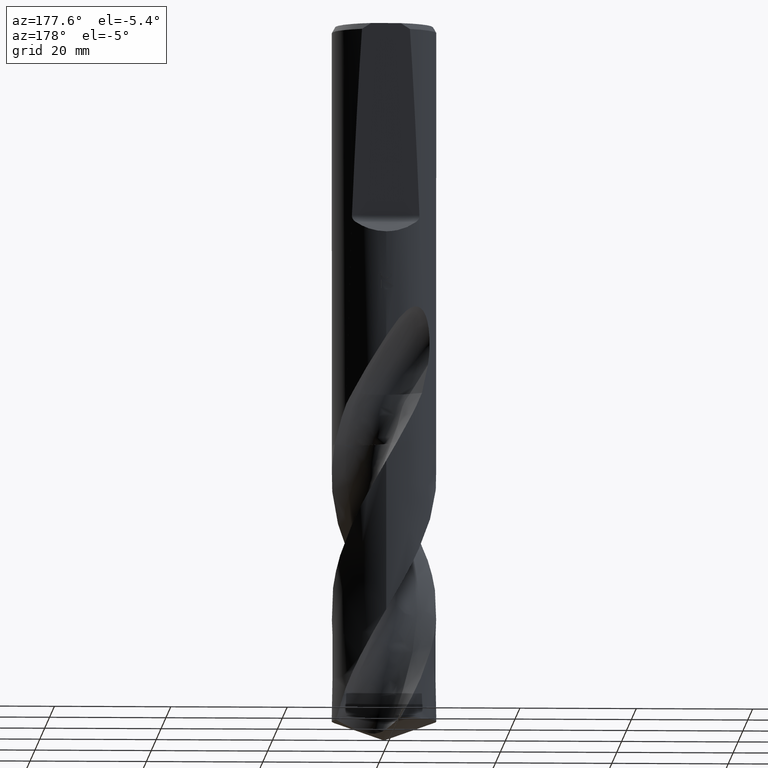
[diagram: clean part render]
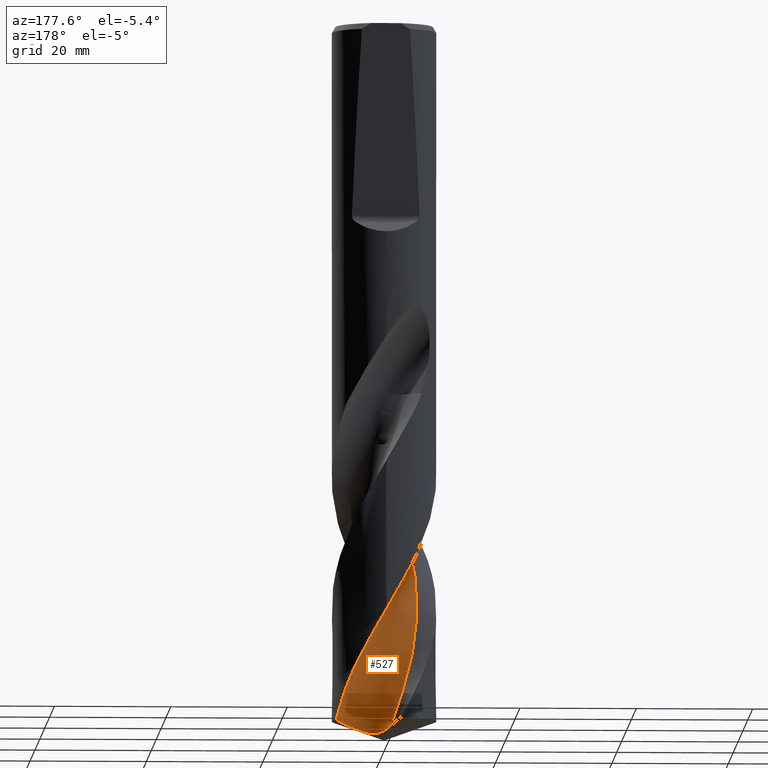
[diagram: same view with one face highlighted and labeled with its STEP entity id]
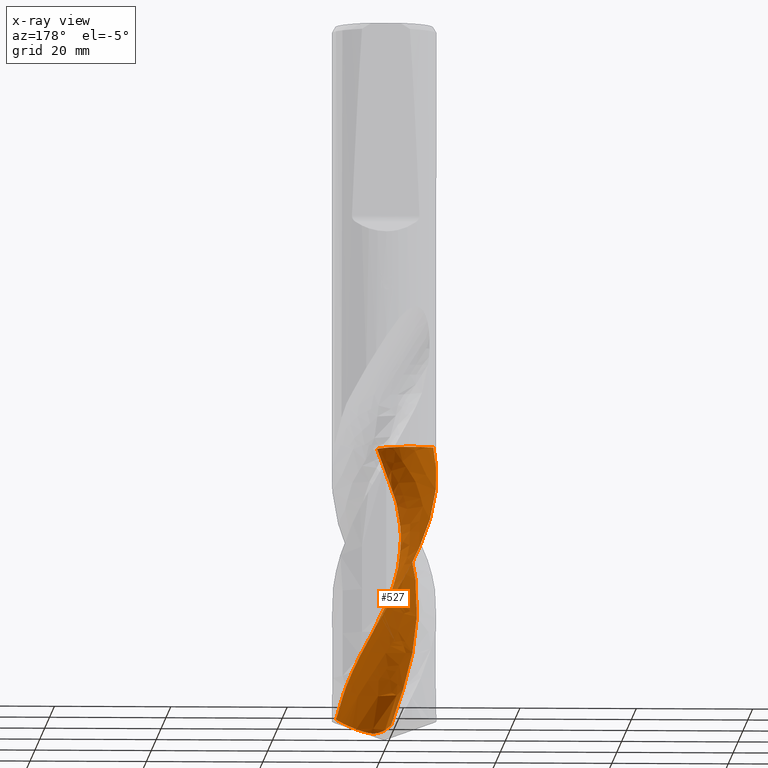
[diagram: x-ray of the same camera — body ghosted, the highlighted face saturated]
A machine part, auxiliary view. The second image highlights one B-rep face of the part: STEP entity #527.
The next image is the same camera in x-ray: the body ghosted, the highlighted face saturated — about 0% of this face is hidden behind the body in this view.
In plain terms, the highlighted face is a freeform B-spline surface patch.
Its self-contained STEP definition (entity closure, byte-faithful):
#287=EDGE_CURVE('',#497,#599,#803,.T.);
#367=VERTEX_POINT('',#889);
#415=EDGE_CURVE('',#699,#497,#941,.T.);
#497=VERTEX_POINT('',#1032);
#525=EDGE_CURVE('',#599,#563,#1061,.T.);
#527=ADVANCED_FACE('',(#1063),#1064,.F.);
#537=EDGE_CURVE('',#761,#367,#1075,.T.);
#559=EDGE_CURVE('',#563,#761,#1101,.T.);
#563=VERTEX_POINT('',#1105);
#599=VERTEX_POINT('',#1145);
#699=VERTEX_POINT('',#1252);
#761=VERTEX_POINT('',#1320);
#765=EDGE_CURVE('',#367,#699,#1324,.T.);
#803=B_SPLINE_CURVE_WITH_KNOTS('',3,(#1957,#1958,#1959,#1960,#1961,#1962,#1963,#1964,#1965,#1966,#1967,#1968,#1969,#1970,#1971,#1972,#1973,#1974,#1975,#1976,#1977,#1978,#1979,#1980,#1981,#1982,#1983,#1984,#1985,#1986,#1987,#1988,#1989,#1990,#1991,#1992,#1993,#1994,#1995,#1996,#1997,#1998,#1999,#2000,#2001,#2002,#2003,#2004,#2005,#2006,#2007,#2008,#2009,#2010,#2011,#2012,#2013,#2014,#2015,#2016),.UNSPECIFIED.,.F.,.F.,(4,2,2,2,2,2,2,2,2,2,2,2,2,2,2,2,2,2,2,2,2,2,2,2,2,2,2,2,2,4),(0.0,2.46118076697465,3.75325145083488,5.70762740824844,8.41329831260749,9.71021391226988,11.8437018549063,12.834451017425,14.0167842203854,15.9593827810047,16.9862517761427,18.5812952919834,21.7512172465028,22.4530451376157,24.3716531520967,25.3626805579739,27.1428678515946,29.9215717103951,31.2001345101285,33.2308335439265,34.196366534837,35.4946594949775,39.0064105842713,39.5056344630486,43.3844075552442,43.5526599539764,45.8807975166537,50.4473462912388,52.7313687469229,55.0114003033254),.UNSPECIFIED.);
#889=CARTESIAN_POINT('',(-0.946776497834975,5.59300826190558,-120.935350905957));
#941=B_SPLINE_CURVE_WITH_KNOTS('',3,(#3430,#3431,#3432,#3433,#3434,#3435,#3436,#3437,#3438,#3439,#3440,#3441,#3442,#3443,#3444,#3445,#3446,#3447,#3448,#3449),.UNSPECIFIED.,.F.,.F.,(4,2,2,2,2,2,2,2,2,4),(0.0,3.45010421380849,5.01221558893851,6.2986139727827,8.2621804399567,10.6288702906526,13.3342852086293,16.3805995540895,19.7744437824298,23.4809774821752),.UNSPECIFIED.);
#1032=CARTESIAN_POINT('',(8.38343318224914,3.27384301376289,-119.724267891604));
#1061=B_SPLINE_CURVE_WITH_KNOTS('',3,(#4143,#4144,#4145,#4146,#4147,#4148,#4149,#4150,#4151,#4152,#4153,#4154,#4155,#4156,#4157,#4158,#4159,#4160,#4161,#4162,#4163,#4164,#4165,#4166,#4167,#4168,#4169,#4170,#4171,#4172,#4173,#4174,#4175,#4176,#4177,#4178,#4179,#4180,#4181,#4182,#4183,#4184,#4185,#4186,#4187,#4188,#4189,#4190,#4191,#4192,#4193,#4194,#4195,#4196,#4197,#4198,#4199,#4200,#4201,#4202),.UNSPECIFIED.,.F.,.F.,(4,2,2,2,2,2,2,2,2,2,2,2,2,2,2,2,2,2,2,2,2,2,2,2,2,2,2,2,2,4),(0.0,2.46118076697465,3.75325145083488,5.70762740824844,8.41329831260749,9.71021391226988,11.8437018549063,12.834451017425,14.0167842203854,15.9593827810047,16.9862517761427,18.5812952919834,21.7512172465028,22.4530451376157,24.3716531520967,25.3626805579739,27.1428678515946,29.9215717103951,31.2001345101285,33.2308335439265,34.196366534837,35.4946594949775,39.0064105842713,39.5056344630486,43.3844075552442,43.5526599539764,45.8807975166537,50.4473462912388,52.7313687469229,55.0114003033254),.UNSPECIFIED.);
#1063=FACE_OUTER_BOUND('',#4204,.T.);
#1064=B_SPLINE_SURFACE_WITH_KNOTS('',3,3,((#4205,#4206,#4207,#4208,#4209,#4210,#4211,#4212,#4213,#4214,#4215,#4216,#4217,#4218,#4219,#4220,#4221,#4222,#4223,#4224,#4225,#4226,#4227,#4228,#4229,#4230,#4231,#4232,#4233,#4234,#4235,#4236,#4237,#4238,#4239,#4240,#4241,#4242,#4243,#4244,#4245,#4246,#4247),(#4248,#4249,#4250,#4251,#4252,#4253,#4254,#4255,#4256,#4257,#4258,#4259,#4260,#4261,#4262,#4263,#4264,#4265,#4266,#4267,#4268,#4269,#4270,#4271,#4272,#4273,#4274,#4275,#4276,#4277,#4278,#4279,#4280,#4281,#4282,#4283,#4284,#4285,#4286,#4287,#4288,#4289,#4290),(#4291,#4292,#4293,#4294,#4295,#4296,#4297,#4298,#4299,#4300,#4301,#4302,#4303,#4304,#4305,#4306,#4307,#4308,#4309,#4310,#4311,#4312,#4313,#4314,#4315,#4316,#4317,#4318,#4319,#4320,#4321,#4322,#4323,#4324,#4325,#4326,#4327,#4328,#4329,#4330,#4331,#4332,#4333),(#4334,#4335,#4336,#4337,#4338,#4339,#4340,#4341,#4342,#4343,#4344,#4345,#4346,#4347,#4348,#4349,#4350,#4351,#4352,#4353,#4354,#4355,#4356,#4357,#4358,#4359,#4360,#4361,#4362,#4363,#4364,#4365,#4366,#4367,#4368,#4369,#4370,#4371,#4372,#4373,#4374,#4375,#4376),(#4377,#4378,#4379,#4380,#4381,#4382,#4383,#4384,#4385,#4386,#4387,#4388,#4389,#4390,#4391,#4392,#4393,#4394,#4395,#4396,#4397,#4398,#4399,#4400,#4401,#4402,#4403,#4404,#4405,#4406,#4407,#4408,#4409,#4410,#4411,#4412,#4413,#4414,#4415,#4416,#4417,#4418,#4419),(#4420,#4421,#4422,#4423,#4424,#4425,#4426,#4427,#4428,#4429,#4430,#4431,#4432,#4433,#4434,#4435,#4436,#4437,#4438,#4439,#4440,#4441,#4442,#4443,#4444,#4445,#4446,#4447,#4448,#4449,#4450,#4451,#4452,#4453,#4454,#4455,#4456,#4457,#4458,#4459,#4460,#4461,#4462),(#4463,#4464,#4465,#4466,#4467,#4468,#4469,#4470,#4471,#4472,#4473,#4474,#4475,#4476,#4477,#4478,#4479,#4480,#4481,#4482,#4483,#4484,#4485,#4486,#4487,#4488,#4489,#4490,#4491,#4492,#4493,#4494,#4495,#4496,#4497,#4498,#4499,#4500,#4501,#4502,#4503,#4504,#4505),(#4506,#4507,#4508,#4509,#4510,#4511,#4512,#4513,#4514,#4515,#4516,#4517,#4518,#4519,#4520,#4521,#4522,#4523,#4524,#4525,#4526,#4527,#4528,#4529,#4530,#4531,#4532,#4533,#4534,#4535,#4536,#4537,#4538,#4539,#4540,#4541,#4542,#4543,#4544,#4545,#4546,#4547,#4548),(#4549,#4550,#4551,#4552,#4553,#4554,#4555,#4556,#4557,#4558,#4559,#4560,#4561,#4562,#4563,#4564,#4565,#4566,#4567,#4568,#4569,#4570,#4571,#4572,#4573,#4574,#4575,#4576,#4577,#4578,#4579,#4580,#4581,#4582,#4583,#4584,#4585,#4586,#4587,#4588,#4589,#4590,#4591),(#4592,#4593,#4594,#4595,#4596,#4597,#4598,#4599,#4600,#4601,#4602,#4603,#4604,#4605,#4606,#4607,#4608,#4609,#4610,#4611,#4612,#4613,#4614,#4615,#4616,#4617,#4618,#4619,#4620,#4621,#4622,#4623,#4624,#4625,#4626,#4627,#4628,#4629,#4630,#4631,#4632,#4633,#4634),(#4635,#4636,#4637,#4638,#4639,#4640,#4641,#4642,#4643,#4644,#4645,#4646,#4647,#4648,#4649,#4650,#4651,#4652,#4653,#4654,#4655,#4656,#4657,#4658,#4659,#4660,#4661,#4662,#4663,#4664,#4665,#4666,#4667,#4668,#4669,#4670,#4671,#4672,#4673,#4674,#4675,#4676,#4677),(#4678,#4679,#4680,#4681,#4682,#4683,#4684,#4685,#4686,#4687,#4688,#4689,#4690,#4691,#4692,#4693,#4694,#4695,#4696,#4697,#4698,#4699,#4700,#4701,#4702,#4703,#4704,#4705,#4706,#4707,#4708,#4709,#4710,#4711,#4712,#4713,#4714,#4715,#4716,#4717,#4718,#4719,#4720),(#4721,#4722,#4723,#4724,#4725,#4726,#4727,#4728,#4729,#4730,#4731,#4732,#4733,#4734,#4735,#4736,#4737,#4738,#4739,#4740,#4741,#4742,#4743,#4744,#4745,#4746,#4747,#4748,#4749,#4750,#4751,#4752,#4753,#4754,#4755,#4756,#4757,#4758,#4759,#4760,#4761,#4762,#4763),(#4764,#4765,#4766,#4767,#4768,#4769,#4770,#4771,#4772,#4773,#4774,#4775,#4776,#4777,#4778,#4779,#4780,#4781,#4782,#4783,#4784,#4785,#4786,#4787,#4788,#4789,#4790,#4791,#4792,#4793,#4794,#4795,#4796,#4797,#4798,#4799,#4800,#4801,#4802,#4803,#4804,#4805,#4806)),.UNSPECIFIED.,.F.,.F.,.F.,(4,1,1,1,1,1,1,1,1,1,1,4),(4,1,2,2,2,2,2,2,1,2,2,2,2,2,2,2,2,2,2,2,1,2,4),(8.06827116691296E-017,0.294525393809048,0.589050787618095,0.883576181427143,1.17810157523619,1.47262696904524,1.76715236285429,2.06167775666333,2.35620315047238,2.65072854428143,2.94525393809048,3.14160420062984),(0.0,1.19578194183412,2.39156388366823,3.58734582550235,4.78312776733646,7.17469165100469,9.56625553467293,11.9578194183412,14.3493833020094,19.1325110693459,23.9156388366823,28.6987666040188,33.4818943713552,38.2650221386917,43.0481499060282,47.8312776733646,52.6144054407011,57.3975332080376,62.180660975374,66.9637887427105,71.7469165100469,74.1384803937152,76.5300442773834),.UNSPECIFIED.);
#1075=B_SPLINE_CURVE_WITH_KNOTS('',3,(#4838,#4839,#4840,#4841,#4842,#4843,#4844,#4845,#4846,#4847,#4848,#4849,#4850,#4851,#4852,#4853,#4854,#4855,#4856,#4857,#4858,#4859,#4860,#4861,#4862,#4863,#4864,#4865,#4866,#4867,#4868,#4869,#4870,#4871,#4872,#4873,#4874,#4875,#4876,#4877,#4878,#4879,#4880),.UNSPECIFIED.,.F.,.F.,(4,1,2,2,2,2,2,2,1,2,2,2,2,2,2,2,2,2,2,2,1,2,4),(0.0,1.19578194183412,2.39156388366823,3.58734582550235,4.78312776733646,7.17469165100469,9.56625553467293,11.9578194183412,14.3493833020094,19.1325110693459,23.9156388366823,28.6987666040188,33.4818943713552,38.2650221386917,43.0481499060282,47.8312776733646,52.6144054407011,57.3975332080376,62.180660975374,66.9637887427105,71.7469165100469,74.1384803937152,76.5300442773834),.UNSPECIFIED.);
#1101=B_SPLINE_CURVE_WITH_KNOTS('',3,(#5232,#5233,#5234,#5235,#5236,#5237,#5238,#5239,#5240,#5241,#5242,#5243,#5244,#5245,#5246,#5247,#5248,#5249,#5250,#5251),.UNSPECIFIED.,.F.,.F.,(4,2,2,2,2,2,2,2,2,4),(-18.9006825405389,-17.6503118623616,-16.3996812763997,-14.0546128135858,-11.7098399814232,-9.366427170296,-7.02464364593267,-4.6837965937777,-2.34262038989068,-0.0),.UNSPECIFIED.);
#1105=CARTESIAN_POINT('',(-8.59892345946347,-2.65644791736324,-72.205));
#1145=CARTESIAN_POINT('',(1.36612460677772E-014,8.99996096237121,-101.171920615762));
#1252=CARTESIAN_POINT('',(8.0889117057848E-013,3.90933409070148,-121.577118755183));
#1320=CARTESIAN_POINT('',(0.969676122680612,-5.57199619304754,-72.205));
#1324=B_SPLINE_CURVE_WITH_KNOTS('',3,(#8257,#8258,#8259,#8260,#8261,#8262,#8263,#8264,#8265,#8266,#8267,#8268,#8269,#8270,#8271,#8272,#8273,#8274,#8275,#8276),.UNSPECIFIED.,.F.,.F.,(4,2,2,2,2,2,2,2,2,4),(0.0,3.45010421380849,5.01221558893851,6.2986139727827,8.2621804399567,10.6288702906526,13.3342852086293,16.3805995540895,19.7744437824298,23.4809774821752),.UNSPECIFIED.);
#1957=CARTESIAN_POINT('',(8.38343318224918,3.27384301376294,-119.724267891604));
#1958=CARTESIAN_POINT('',(8.23365014732362,3.65739305635682,-119.014690518703));
#1959=CARTESIAN_POINT('',(8.05746439135217,4.03085624322215,-118.307915833993));
#1960=CARTESIAN_POINT('',(7.75013812433555,4.58064179198247,-117.226744640663));
#1961=CARTESIAN_POINT('',(7.63760027259951,4.76590504848524,-116.854838464275));
#1962=CARTESIAN_POINT('',(7.33852324740811,5.22046271362024,-115.919267164756));
#1963=CARTESIAN_POINT('',(7.1438773702148,5.48378415299282,-115.354643631525));
#1964=CARTESIAN_POINT('',(6.64669875071633,6.0849264153094,-114.011860096343));
#1965=CARTESIAN_POINT('',(6.33208618526853,6.41168094483804,-113.235477015194));
#1966=CARTESIAN_POINT('',(5.83220069049957,6.8580095856177,-112.082323620907));
#1967=CARTESIAN_POINT('',(5.66514415697295,6.99663913513537,-111.708161603912));
#1968=CARTESIAN_POINT('',(5.21032636832307,7.34708625273727,-110.71992672355));
#1969=CARTESIAN_POINT('',(4.91460207670057,7.54811910651847,-110.106911769246));
#1970=CARTESIAN_POINT('',(4.46493926614288,7.81610354275792,-109.207245524661));
#1971=CARTESIAN_POINT('',(4.32010179405594,7.89707561082153,-108.922053217779));
#1972=CARTESIAN_POINT('',(3.99788523990916,8.06570722102848,-108.296040557877));
#1973=CARTESIAN_POINT('',(3.81969954856027,8.15160124296793,-107.954989823228));
#1974=CARTESIAN_POINT('',(3.34136894008051,8.36304182854661,-107.054744379439));
#1975=CARTESIAN_POINT('',(3.03694043958639,8.47835151182073,-106.496352143291));
#1976=CARTESIAN_POINT('',(2.56275899606558,8.6290983681947,-105.641288741923));
#1977=CARTESIAN_POINT('',(2.39739980068086,8.67648998755698,-105.345733317579));
#1978=CARTESIAN_POINT('',(1.97218851300683,8.7852827967784,-104.590505325182));
#1979=CARTESIAN_POINT('',(1.71077366439034,8.83990895643372,-104.130259537528));
#1980=CARTESIAN_POINT('',(0.923315283524634,8.96819718519619,-102.757655947575));
#1981=CARTESIAN_POINT('',(0.39319139908722,9.00698712161427,-101.849463468071));
#1982=CARTESIAN_POINT('',(-0.254299734263807,8.99713239260921,-100.733886946108));
#1983=CARTESIAN_POINT('',(-0.371600582378666,8.99305264659487,-100.531527846979));
#1984=CARTESIAN_POINT('',(-0.809722643874123,8.96921392355579,-99.7759958930216));
#1985=CARTESIAN_POINT('',(-1.12956581512421,8.93458528607031,-99.2240252319916));
#1986=CARTESIAN_POINT('',(-1.61113038339274,8.85613165386848,-98.3855713753422));
#1987=CARTESIAN_POINT('',(-1.77432184785812,8.82488188673146,-98.1001193070603));
#1988=CARTESIAN_POINT('',(-2.22781115102719,8.72496374528183,-97.3013604820814));
#1989=CARTESIAN_POINT('',(-2.51558738527214,8.64637930827996,-96.7873074911071));
#1990=CARTESIAN_POINT('',(-3.24138020918348,8.40887578639296,-95.4733232060766));
#1991=CARTESIAN_POINT('',(-3.6718020559385,8.2300356628732,-94.6758699474443));
#1992=CARTESIAN_POINT('',(-4.27721488400823,7.92150812390722,-93.5065061384391));
#1993=CARTESIAN_POINT('',(-4.464347691928,7.81757094365322,-93.1374786120275));
#1994=CARTESIAN_POINT('',(-4.93880352083627,7.53145197086707,-92.1837664786984));
#1995=CARTESIAN_POINT('',(-5.2199266468651,7.33942505136361,-91.5999347394244));
#1996=CARTESIAN_POINT('',(-5.61790023143174,7.03308548578325,-90.7368218643172));
#1997=CARTESIAN_POINT('',(-5.74339848331584,6.93097444321129,-90.4587897393849));
#1998=CARTESIAN_POINT('',(-6.03089925832322,6.68389002472725,-89.8064440339364));
#1999=CARTESIAN_POINT('',(-6.19048624474552,6.53635699700966,-89.4317813595722));
#2000=CARTESIAN_POINT('',(-6.76154367823331,5.96874233314377,-88.04583279801));
#2001=CARTESIAN_POINT('',(-7.1367098882527,5.51462592077739,-87.0407169820732));
#2002=CARTESIAN_POINT('',(-7.51144277582592,4.95821713148003,-85.8848914203371));
#2003=CARTESIAN_POINT('',(-7.55710777218911,4.88833526337546,-85.7409715069162));
#2004=CARTESIAN_POINT('',(-7.94949596676119,4.26918501715877,-84.4784300740425));
#2005=CARTESIAN_POINT('',(-8.23659079730973,3.68487772956656,-83.3691091242872));
#2006=CARTESIAN_POINT('',(-8.46792991991874,3.04852982859363,-82.2020226919047));
#2007=CARTESIAN_POINT('',(-8.47741600462853,3.02205015122953,-82.1535219524064));
#2008=CARTESIAN_POINT('',(-8.61641281042854,2.6282440238905,-81.4336675833727));
#2009=CARTESIAN_POINT('',(-8.72220980051108,2.25254802524836,-80.7645010564167));
#2010=CARTESIAN_POINT('',(-8.96250504492854,1.12171929274556,-78.7781188582612));
#2011=CARTESIAN_POINT('',(-9.02543500712306,0.355514375900625,-77.4631645390851));
#2012=CARTESIAN_POINT('',(-8.97315737285237,-0.79213918766301,-75.4893994987363));
#2013=CARTESIAN_POINT('',(-8.93132748475332,-1.17295351426073,-74.8330057612262));
#2014=CARTESIAN_POINT('',(-8.79980850737894,-1.9254196336187,-73.5174061869536));
#2015=CARTESIAN_POINT('',(-8.71079011530051,-2.29437628018151,-72.8583262585915));
#2016=CARTESIAN_POINT('',(-8.59884871352988,-2.65668985481289,-72.2045634461132));
#3430=CARTESIAN_POINT('',(-0.946776497835023,5.59300826190562,-120.935350905957));
#3431=CARTESIAN_POINT('',(-0.516357271922217,4.59781474210128,-121.318638065361));
#3432=CARTESIAN_POINT('',(0.0563276824001435,3.76510071179975,-121.650824961748));
#3433=CARTESIAN_POINT('',(0.859003303100492,2.85134666007171,-121.921630834152));
#3434=CARTESIAN_POINT('',(1.1353141222866,2.57331556235945,-121.986036482878));
#3435=CARTESIAN_POINT('',(1.68124910443447,2.11342881436092,-122.023943849225));
#3436=CARTESIAN_POINT('',(1.93625619285751,1.9287312407371,-122.01120751759));
#3437=CARTESIAN_POINT('',(2.63160099394699,1.52116742750124,-121.9061149535));
#3438=CARTESIAN_POINT('',(3.07371188689581,1.34722945856599,-121.781766094895));
#3439=CARTESIAN_POINT('',(4.08545978386092,1.13295091097553,-121.460633633505));
#3440=CARTESIAN_POINT('',(4.65066287331683,1.12932602582642,-121.258139545741));
#3441=CARTESIAN_POINT('',(5.82856071893162,1.34128862938342,-120.82316608536));
#3442=CARTESIAN_POINT('',(6.42651803790683,1.58608174127434,-120.591774899469));
#3443=CARTESIAN_POINT('',(7.57363087732791,2.33010478515353,-120.116992912912));
#3444=CARTESIAN_POINT('',(8.09662748880818,2.85026776556292,-119.879260499843));
#3445=CARTESIAN_POINT('',(8.97835326092849,4.12973763058887,-119.406762995918));
#3446=CARTESIAN_POINT('',(9.3046939515393,4.89904775431728,-119.178947557367));
#3447=CARTESIAN_POINT('',(9.67778141639111,6.59851462539278,-118.743494100591));
#3448=CARTESIAN_POINT('',(9.69369594000874,7.52565187047837,-118.542483573378));
#3449=CARTESIAN_POINT('',(9.53403320279432,8.43221269228994,-118.367415225606));
#4143=CARTESIAN_POINT('',(8.38343318224918,3.27384301376294,-119.724267891604));
#4144=CARTESIAN_POINT('',(8.23365014732362,3.65739305635682,-119.014690518703));
#4145=CARTESIAN_POINT('',(8.05746439135217,4.03085624322215,-118.307915833993));
#4146=CARTESIAN_POINT('',(7.75013812433555,4.58064179198247,-117.226744640663));
#4147=CARTESIAN_POINT('',(7.63760027259951,4.76590504848524,-116.854838464275));
#4148=CARTESIAN_POINT('',(7.33852324740811,5.22046271362024,-115.919267164756));
#4149=CARTESIAN_POINT('',(7.1438773702148,5.48378415299282,-115.354643631525));
#4150=CARTESIAN_POINT('',(6.64669875071633,6.0849264153094,-114.011860096343));
#4151=CARTESIAN_POINT('',(6.33208618526853,6.41168094483804,-113.235477015194));
#4152=CARTESIAN_POINT('',(5.83220069049957,6.8580095856177,-112.082323620907));
#4153=CARTESIAN_POINT('',(5.66514415697295,6.99663913513537,-111.708161603912));
#4154=CARTESIAN_POINT('',(5.21032636832307,7.34708625273727,-110.71992672355));
#4155=CARTESIAN_POINT('',(4.91460207670057,7.54811910651847,-110.106911769246));
#4156=CARTESIAN_POINT('',(4.46493926614288,7.81610354275792,-109.207245524661));
#4157=CARTESIAN_POINT('',(4.32010179405594,7.89707561082153,-108.922053217779));
#4158=CARTESIAN_POINT('',(3.99788523990916,8.06570722102848,-108.296040557877));
#4159=CARTESIAN_POINT('',(3.81969954856027,8.15160124296793,-107.954989823228));
#4160=CARTESIAN_POINT('',(3.34136894008051,8.36304182854661,-107.054744379439));
#4161=CARTESIAN_POINT('',(3.03694043958639,8.47835151182073,-106.496352143291));
#4162=CARTESIAN_POINT('',(2.56275899606558,8.6290983681947,-105.641288741923));
#4163=CARTESIAN_POINT('',(2.39739980068086,8.67648998755698,-105.345733317579));
#4164=CARTESIAN_POINT('',(1.97218851300683,8.7852827967784,-104.590505325182));
#4165=CARTESIAN_POINT('',(1.71077366439034,8.83990895643372,-104.130259537528));
#4166=CARTESIAN_POINT('',(0.923315283524634,8.96819718519619,-102.757655947575));
#4167=CARTESIAN_POINT('',(0.39319139908722,9.00698712161427,-101.849463468071));
#4168=CARTESIAN_POINT('',(-0.254299734263807,8.99713239260921,-100.733886946108));
#4169=CARTESIAN_POINT('',(-0.371600582378666,8.99305264659487,-100.531527846979));
#4170=CARTESIAN_POINT('',(-0.809722643874123,8.96921392355579,-99.7759958930216));
#4171=CARTESIAN_POINT('',(-1.12956581512421,8.93458528607031,-99.2240252319916));
#4172=CARTESIAN_POINT('',(-1.61113038339274,8.85613165386848,-98.3855713753422));
#4173=CARTESIAN_POINT('',(-1.77432184785812,8.82488188673146,-98.1001193070603));
#4174=CARTESIAN_POINT('',(-2.22781115102719,8.72496374528183,-97.3013604820814));
#4175=CARTESIAN_POINT('',(-2.51558738527214,8.64637930827996,-96.7873074911071));
#4176=CARTESIAN_POINT('',(-3.24138020918348,8.40887578639296,-95.4733232060766));
#4177=CARTESIAN_POINT('',(-3.6718020559385,8.2300356628732,-94.6758699474443));
#4178=CARTESIAN_POINT('',(-4.27721488400823,7.92150812390722,-93.5065061384391));
#4179=CARTESIAN_POINT('',(-4.464347691928,7.81757094365322,-93.1374786120275));
#4180=CARTESIAN_POINT('',(-4.93880352083627,7.53145197086707,-92.1837664786984));
#4181=CARTESIAN_POINT('',(-5.2199266468651,7.33942505136361,-91.5999347394244));
#4182=CARTESIAN_POINT('',(-5.61790023143174,7.03308548578325,-90.7368218643172));
#4183=CARTESIAN_POINT('',(-5.74339848331584,6.93097444321129,-90.4587897393849));
#4184=CARTESIAN_POINT('',(-6.03089925832322,6.68389002472725,-89.8064440339364));
#4185=CARTESIAN_POINT('',(-6.19048624474552,6.53635699700966,-89.4317813595722));
#4186=CARTESIAN_POINT('',(-6.76154367823331,5.96874233314377,-88.04583279801));
#4187=CARTESIAN_POINT('',(-7.1367098882527,5.51462592077739,-87.0407169820732));
#4188=CARTESIAN_POINT('',(-7.51144277582592,4.95821713148003,-85.8848914203371));
#4189=CARTESIAN_POINT('',(-7.55710777218911,4.88833526337546,-85.7409715069162));
#4190=CARTESIAN_POINT('',(-7.94949596676119,4.26918501715877,-84.4784300740425));
#4191=CARTESIAN_POINT('',(-8.23659079730973,3.68487772956656,-83.3691091242872));
#4192=CARTESIAN_POINT('',(-8.46792991991874,3.04852982859363,-82.2020226919047));
#4193=CARTESIAN_POINT('',(-8.47741600462853,3.02205015122953,-82.1535219524064));
#4194=CARTESIAN_POINT('',(-8.61641281042854,2.6282440238905,-81.4336675833727));
#4195=CARTESIAN_POINT('',(-8.72220980051108,2.25254802524836,-80.7645010564167));
#4196=CARTESIAN_POINT('',(-8.96250504492854,1.12171929274556,-78.7781188582612));
#4197=CARTESIAN_POINT('',(-9.02543500712306,0.355514375900625,-77.4631645390851));
#4198=CARTESIAN_POINT('',(-8.97315737285237,-0.79213918766301,-75.4893994987363));
#4199=CARTESIAN_POINT('',(-8.93132748475332,-1.17295351426073,-74.8330057612262));
#4200=CARTESIAN_POINT('',(-8.79980850737894,-1.9254196336187,-73.5174061869536));
#4201=CARTESIAN_POINT('',(-8.71079011530051,-2.29437628018151,-72.8583262585915));
#4202=CARTESIAN_POINT('',(-8.59884871352988,-2.65668985481289,-72.2045634461132));
#4204=EDGE_LOOP('',(#8556,#8557,#8558,#8559,#8560,#8561));
#4205=CARTESIAN_POINT('',(-4.24264068704858,-12.9426406870486,-63.613));
#4206=CARTESIAN_POINT('',(-4.49410517187829,-12.9280061886827,-63.9219449773615));
#4207=CARTESIAN_POINT('',(-5.00038981777688,-12.8665892635691,-64.5422166500592));
#4208=CARTESIAN_POINT('',(-5.50859146904047,-12.7290476830163,-65.1652024960231));
#4209=CARTESIAN_POINT('',(-6.01312319455351,-12.5470288974191,-65.7874434253979));
#4210=CARTESIAN_POINT('',(-6.26364937184898,-12.4315214565417,-66.0980931940682));
#4211=CARTESIAN_POINT('',(-6.75399093622371,-12.1458827756427,-66.7155735371025));
#4212=CARTESIAN_POINT('',(-6.99413441467529,-11.9938610945223,-67.0237320411335));
#4213=CARTESIAN_POINT('',(-7.69789062080469,-11.5109297059719,-67.9462134063866));
#4214=CARTESIAN_POINT('',(-8.14752637383775,-11.1776053216324,-68.5614777811024));
#4215=CARTESIAN_POINT('',(-9.0164628765494,-10.4991276422137,-69.8005130662699));
#4216=CARTESIAN_POINT('',(-9.43127227932317,-10.1355621953012,-70.4204101482136));
#4217=CARTESIAN_POINT('',(-10.2148291589882,-9.36238255811835,-71.6609900691649));
#4218=CARTESIAN_POINT('',(-10.582103032129,-8.94872702289917,-72.2803963403265));
#4219=CARTESIAN_POINT('',(-11.2587606557898,-8.07008565668913,-73.5156934032923));
#4220=CARTESIAN_POINT('',(-12.1978583633769,-6.69674430405435,-75.3701763417519));
#4221=CARTESIAN_POINT('',(-12.8857486942738,-5.17572096743599,-77.2279858514397));
#4222=CARTESIAN_POINT('',(-13.5417138891053,-3.06153723233831,-79.7024892904261));
#4223=CARTESIAN_POINT('',(-13.7464296713277,-1.9677373266301,-80.9398451454345));
#4224=CARTESIAN_POINT('',(-13.8813600005638,0.242039804003063,-83.4146984360404));
#4225=CARTESIAN_POINT('',(-13.8202874555455,1.35314509516591,-84.6520954912055));
#4226=CARTESIAN_POINT('',(-13.4267369338371,3.53166157703948,-87.1268689038967));
#4227=CARTESIAN_POINT('',(-13.103630025218,4.59649435775723,-88.3642632875652));
#4228=CARTESIAN_POINT('',(-12.2039761513477,6.61924916473669,-90.8390604633844));
#4229=CARTESIAN_POINT('',(-11.6372253310084,7.57688556872354,-92.0764568063751));
#4230=CARTESIAN_POINT('',(-10.2829393859684,9.32812631453989,-94.5512429048563));
#4231=CARTESIAN_POINT('',(-9.50496318037043,10.1237758468368,-95.7886405870159));
#4232=CARTESIAN_POINT('',(-7.7734470406116,11.5032479173475,-98.263429907499));
#4233=CARTESIAN_POINT('',(-6.82875958562033,12.0913521293672,-99.5008235234877));
#4234=CARTESIAN_POINT('',(-4.81921666546804,13.02017178939,-101.975623486626));
#4235=CARTESIAN_POINT('',(-3.76191268958958,13.3671228652639,-103.213017792021));
#4236=CARTESIAN_POINT('',(-1.58932162237623,13.792211596537,-105.687795731443));
#4237=CARTESIAN_POINT('',(-0.479866469428093,13.8781712254266,-106.925193531646));
#4238=CARTESIAN_POINT('',(1.73154231752139,13.7750805312218,-109.400008495146));
#4239=CARTESIAN_POINT('',(2.82964992031788,13.5950915233738,-110.637388003313));
#4240=CARTESIAN_POINT('',(4.95336474507951,12.9700090672411,-113.112138099681));
#4241=CARTESIAN_POINT('',(5.97745967125131,12.534306424348,-114.349633844239));
#4242=CARTESIAN_POINT('',(7.89160716009322,11.4214732442257,-116.824585812774));
#4243=CARTESIAN_POINT('',(9.2282170786272,10.4230059558837,-118.680060746701));
#4244=CARTESIAN_POINT('',(10.3557935115381,9.20052643935552,-120.535150402933));
#4245=CARTESIAN_POINT('',(11.0527251953334,8.33856010582883,-121.772016995176));
#4246=CARTESIAN_POINT('',(11.378670177648,7.8943477468716,-122.389812972891));
#4247=CARTESIAN_POINT('',(11.6835397836118,7.43989230028192,-123.008307730503));
#4248=CARTESIAN_POINT('',(-4.65914407156236,-12.5261004599468,-63.613));
#4249=CARTESIAN_POINT('',(-4.91057549280717,-12.5114329014716,-63.9219441240965));
#4250=CARTESIAN_POINT('',(-5.41366326647045,-12.4467838602583,-64.5423874229073));
#4251=CARTESIAN_POINT('',(-5.91215500223232,-12.2998640812852,-65.1657789722609));
#4252=CARTESIAN_POINT('',(-6.40334206606923,-12.1056778686353,-65.7883740917699));
#4253=CARTESIAN_POINT('',(-6.64514860137759,-11.9824793379926,-66.0991649459844));
#4254=CARTESIAN_POINT('',(-7.11345969024043,-11.6790178659794,-66.7165225405031));
#4255=CARTESIAN_POINT('',(-7.34223027527148,-11.5184528761053,-67.024555621703));
#4256=CARTESIAN_POINT('',(-8.01085828362677,-11.0110837967681,-67.9464547352447));
#4257=CARTESIAN_POINT('',(-8.4385468123975,-10.6649637448211,-68.5613622950569));
#4258=CARTESIAN_POINT('',(-9.2672432952533,-9.96564535065292,-69.8005692898164));
#4259=CARTESIAN_POINT('',(-9.66141522507873,-9.59285710281926,-70.4205910833));
#4260=CARTESIAN_POINT('',(-10.4025900456116,-8.80359810174911,-71.6615027314455));
#4261=CARTESIAN_POINT('',(-10.7475602777494,-8.38287891205146,-72.2809829317883));
#4262=CARTESIAN_POINT('',(-11.3774898420573,-7.492622575737,-73.5160613086653));
#4263=CARTESIAN_POINT('',(-12.2465683057226,-6.10641743084887,-75.3703763639415));
#4264=CARTESIAN_POINT('',(-12.8639871627517,-4.58517547925218,-77.2283647856213));
#4265=CARTESIAN_POINT('',(-13.4260110421513,-2.4820287323482,-79.7028382508501));
#4266=CARTESIAN_POINT('',(-13.5850799860529,-1.39924282006029,-80.9401899423949));
#4267=CARTESIAN_POINT('',(-13.6313340377502,0.777489549625262,-83.4150497949737));
#4268=CARTESIAN_POINT('',(-13.5285249665119,1.86704484599133,-84.6524469539009));
#4269=CARTESIAN_POINT('',(-13.0567077363111,3.99241796681623,-87.1272185870741));
#4270=CARTESIAN_POINT('',(-12.6981811924831,5.02641271792139,-88.3646128748062));
#4271=CARTESIAN_POINT('',(-11.7351157489851,6.97895488742411,-90.8394106067247));
#4272=CARTESIAN_POINT('',(-11.1412802310528,7.89822205032598,-92.0768071061784));
#4273=CARTESIAN_POINT('',(-9.74206962920693,9.56619825551823,-94.5515926485602));
#4274=CARTESIAN_POINT('',(-8.94689410929379,10.3181417154883,-95.7889906085655));
#4275=CARTESIAN_POINT('',(-7.19151035014492,11.6060515194074,-98.2637797066088));
#4276=CARTESIAN_POINT('',(-6.24049663704397,12.1476146352621,-99.5011733051475));
#4277=CARTESIAN_POINT('',(-4.22951458725611,12.9818320557169,-101.975973935605));
#4278=CARTESIAN_POINT('',(-3.17711765585823,13.2820751023458,-103.213367967073));
#4279=CARTESIAN_POINT('',(-1.02559216218648,13.6149345257979,-105.688144794296));
#4280=CARTESIAN_POINT('',(0.0680054597627765,13.6566870233751,-106.925543507985));
#4281=CARTESIAN_POINT('',(2.23704383786249,13.4689974836474,-109.400360918322));
#4282=CARTESIAN_POINT('',(3.30924779094499,13.2498328619314,-110.637738546174));
#4283=CARTESIAN_POINT('',(5.37173195670323,12.552652785993,-113.11248085715));
#4284=CARTESIAN_POINT('',(6.36135275062111,12.0850281185885,-114.349983900756));
#4285=CARTESIAN_POINT('',(8.19876969995141,10.9166210893828,-116.824953886912));
#4286=CARTESIAN_POINT('',(9.47394665694462,9.88405796467554,-118.680370684182));
#4287=CARTESIAN_POINT('',(10.5341560507997,8.63861519854153,-120.535498787767));
#4288=CARTESIAN_POINT('',(11.1847577311921,7.7639953514772,-121.772396744017));
#4289=CARTESIAN_POINT('',(11.4883464712829,7.31519017389342,-122.390137614606));
#4290=CARTESIAN_POINT('',(11.7717416316217,6.85748252594276,-123.008652503016));
#4291=CARTESIAN_POINT('',(-5.36858526657363,-11.5695730948488,-63.613));
#4292=CARTESIAN_POINT('',(-5.61994076581025,-11.5548492254407,-63.9219426433747));
#4293=CARTESIAN_POINT('',(-6.11567681717526,-11.4846843082899,-64.542683750527));
#4294=CARTESIAN_POINT('',(-6.59196924676397,-11.3218884079689,-65.1667793027969));
#4295=CARTESIAN_POINT('',(-7.05286101632276,-11.107325619986,-65.789989010925));
#4296=CARTESIAN_POINT('',(-7.27494890829169,-10.9713313484961,-66.1010246905909));
#4297=CARTESIAN_POINT('',(-7.69391702505488,-10.6387590741161,-66.7181692853782));
#4298=CARTESIAN_POINT('',(-7.89740999742451,-10.4644809455048,-67.0259847256299));
#4299=CARTESIAN_POINT('',(-8.48853973739906,-9.91865610896371,-67.9468735051905));
#4300=CARTESIAN_POINT('',(-8.86854253308876,-9.5534540395119,-68.5611619240053));
#4301=CARTESIAN_POINT('',(-9.61058457992135,-8.82438886680424,-69.8006668263856));
#4302=CARTESIAN_POINT('',(-9.96074945293422,-8.43927558294339,-70.4209050688791));
#4303=CARTESIAN_POINT('',(-10.6123978985407,-7.63042683491461,-71.6623923017132));
#4304=CARTESIAN_POINT('',(-10.9106692471613,-7.20219469352577,-72.2820007812912));
#4305=CARTESIAN_POINT('',(-11.4437045730717,-6.30256565812234,-73.5166997374331));
#4306=CARTESIAN_POINT('',(-12.1689393208581,-4.91139666646344,-75.370723423726));
#4307=CARTESIAN_POINT('',(-12.6453596030156,-3.41061352175991,-77.2290223278425));
#4308=CARTESIAN_POINT('',(-13.0227854376022,-1.35739459464455,-79.7034437783159));
#4309=CARTESIAN_POINT('',(-13.093832581263,-0.310170407108541,-80.9407883707753));
#4310=CARTESIAN_POINT('',(-12.9725438738229,1.77418264811887,-83.4156593621102));
#4311=CARTESIAN_POINT('',(-12.7926570338138,2.80826506203645,-84.6530568952942));
#4312=CARTESIAN_POINT('',(-12.1800746493944,4.80415086450278,-87.1278252999688));
#4313=CARTESIAN_POINT('',(-11.7598573589859,5.76597101862394,-88.3652193397159));
#4314=CARTESIAN_POINT('',(-10.6907962833148,7.55929420072338,-90.8400183402379));
#4315=CARTESIAN_POINT('',(-10.0541720976949,8.3937966994252,-92.0774149175792));
#4316=CARTESIAN_POINT('',(-8.58980732927363,9.8819337963818,-94.5521995785732));
#4317=CARTESIAN_POINT('',(-7.7731951001992,10.5413707529602,-95.7895978026221));
#4318=CARTESIAN_POINT('',(-5.99722904502307,11.6390906896032,-98.2643868672745));
#4319=CARTESIAN_POINT('',(-5.04736392923353,12.0857017595262,-99.5017801476056));
#4320=CARTESIAN_POINT('',(-3.06155505299221,12.7303002226596,-101.976582159288));
#4321=CARTESIAN_POINT('',(-2.03282137553454,12.9385882437789,-103.213975485624));
#4322=CARTESIAN_POINT('',(0.0492280542303963,13.0932473330156,-105.688750619262));
#4323=CARTESIAN_POINT('',(1.09800446811656,13.0512933418051,-106.926150373721));
#4324=CARTESIAN_POINT('',(3.15722236154518,12.7069805665156,-109.400972882205));
#4325=CARTESIAN_POINT('',(4.16600607493115,12.4171506810092,-110.638346762055));
#4326=CARTESIAN_POINT('',(6.08465866033253,11.5939407529614,-113.113075681675));
#4327=CARTESIAN_POINT('',(6.99587010113756,11.0726984197006,-114.350591501548));
#4328=CARTESIAN_POINT('',(8.66335734073134,9.81590268122293,-116.825592413044));
#4329=CARTESIAN_POINT('',(9.80556620400836,8.73336836357658,-118.680908577387));
#4330=CARTESIAN_POINT('',(10.7242412395013,7.46197765963636,-120.536103282299));
#4331=CARTESIAN_POINT('',(11.278436890688,6.57579001278329,-121.773055733994));
#4332=CARTESIAN_POINT('',(11.5359542135797,6.12442885074865,-122.390700802172));
#4333=CARTESIAN_POINT('',(11.7754388961091,5.66658480502962,-123.009250765064));
#4334=CARTESIAN_POINT('',(-5.97041833799895,-9.88759179198031,-63.6129999999998));
#4335=CARTESIAN_POINT('',(-6.22164032777569,-9.87282015596255,-63.9219412916721));
#4336=CARTESIAN_POINT('',(-6.70442136216115,-9.79793893497781,-64.5429543370633));
#4337=CARTESIAN_POINT('',(-7.14193470435874,-9.622020344237,-65.1676927289059));
#4338=CARTESIAN_POINT('',(-7.55046636350555,-9.39140002742234,-65.791463641969));
#4339=CARTESIAN_POINT('',(-7.73867734038814,-9.24562451975937,-66.1027228757635));
#4340=CARTESIAN_POINT('',(-8.07413923038838,-8.89275254114932,-66.7196729731778));
#4341=CARTESIAN_POINT('',(-8.23537567599914,-8.70979762831979,-67.0272896826705));
#4342=CARTESIAN_POINT('',(-8.69851397962238,-8.14251996150999,-67.9472558905871));
#4343=CARTESIAN_POINT('',(-9.00175695704139,-7.77069199861054,-68.5609789448616));
#4344=CARTESIAN_POINT('',(-9.60645737916169,-7.0366617148604,-69.8007559045045));
#4345=CARTESIAN_POINT('',(-9.88808535941242,-6.65301992579096,-70.4211917750757));
#4346=CARTESIAN_POINT('',(-10.4026927529321,-5.85503638370245,-71.6632045957992));
#4347=CARTESIAN_POINT('',(-10.6306586440211,-5.43635527497984,-72.2829302241223));
#4348=CARTESIAN_POINT('',(-11.0205258822957,-4.56546643520901,-73.5172826883071));
#4349=CARTESIAN_POINT('',(-11.5371187223049,-3.22981089691623,-75.3710403467694));
#4350=CARTESIAN_POINT('',(-11.8200518926456,-1.81979496181662,-77.2296227601314));
#4351=CARTESIAN_POINT('',(-11.9542386971844,0.0813694214883973,-79.7039966900504));
#4352=CARTESIAN_POINT('',(-11.9144208920183,1.03921630432941,-80.9413346904641));
#4353=CARTESIAN_POINT('',(-11.5928610033098,2.91800479550347,-83.4162160966756));
#4354=CARTESIAN_POINT('',(-11.3264895261515,3.83889424659998,-84.6536138677905));
#4355=CARTESIAN_POINT('',(-10.5682329561595,5.58760952819448,-87.1283792883098));
#4356=CARTESIAN_POINT('',(-10.0908912772455,6.41896265777249,-88.3657731978814));
#4357=CARTESIAN_POINT('',(-8.93901302057976,7.93757812572927,-90.8405732003864));
#4358=CARTESIAN_POINT('',(-8.27787979076814,8.63177239343291,-92.0779699504979));
#4359=CARTESIAN_POINT('',(-6.79830312994792,9.83338739224129,-94.5527537597986));
#4360=CARTESIAN_POINT('',(-5.99120276822019,10.3507011603192,-95.790152386238));
#4361=CARTESIAN_POINT('',(-4.26851267008937,11.1664505944863,-98.2649411447032));
#4362=CARTESIAN_POINT('',(-3.36164447529128,11.4772630315461,-99.5023342701655));
#4363=CARTESIAN_POINT('',(-1.49454255807586,11.8606353568095,-101.977137547379));
#4364=CARTESIAN_POINT('',(-0.539819345509152,11.9472311717464,-103.214530317253));
#4365=CARTESIAN_POINT('',(1.36490104244836,11.8763471712547,-105.6893037253));
#4366=CARTESIAN_POINT('',(2.31288776517076,11.73375488164,-106.92670477794));
#4367=CARTESIAN_POINT('',(4.14626033926824,11.2124403698607,-109.401531425202));
#4368=CARTESIAN_POINT('',(5.03323546343257,10.8487913893512,-110.638902106762));
#4369=CARTESIAN_POINT('',(6.69054371251094,9.90730553861208,-113.113618866584));
#4370=CARTESIAN_POINT('',(7.46585414167664,9.34324219358609,-114.351146181045));
#4371=CARTESIAN_POINT('',(8.85092593180118,8.0335673648129,-116.826175606651));
#4372=CARTESIAN_POINT('',(9.78050536741576,6.93720477056117,-118.68139969209));
#4373=CARTESIAN_POINT('',(10.4847157640473,5.69020012332516,-120.53665527914));
#4374=CARTESIAN_POINT('',(10.8954882130657,4.8293888734298,-121.773657459974));
#4375=CARTESIAN_POINT('',(11.0857593229566,4.39442119219567,-122.391215120285));
#4376=CARTESIAN_POINT('',(11.2621534143405,3.95550273077601,-123.009797054756));
#4377=CARTESIAN_POINT('',(-6.05808134824821,-8.10333302552071,-63.613));
#4378=CARTESIAN_POINT('',(-6.30916171873843,-8.08855442894018,-63.9219409243529));
#4379=CARTESIAN_POINT('',(-6.77817643604788,-8.01292067808637,-64.5430277084907));
#4380=CARTESIAN_POINT('',(-7.17477161263071,-7.83570127281624,-65.1679404059982));
#4381=CARTESIAN_POINT('',(-7.52853712173122,-7.60491387049338,-65.7918634940849));
#4382=CARTESIAN_POINT('',(-7.68149091947646,-7.45961206213166,-66.1031833411096));
#4383=CARTESIAN_POINT('',(-7.93114932207932,-7.11155526571189,-66.7200807057579));
#4384=CARTESIAN_POINT('',(-8.04942975340801,-6.93256383090294,-67.0276435250217));
#4385=CARTESIAN_POINT('',(-8.38385968862177,-6.38191172564522,-67.9473595772996));
#4386=CARTESIAN_POINT('',(-8.6117248229757,-6.02602541301751,-68.5609293308178));
#4387=CARTESIAN_POINT('',(-9.08355624333238,-5.32711211725359,-69.8007800569906));
#4388=CARTESIAN_POINT('',(-9.30002569631525,-4.96477376987201,-70.4212695094315));
#4389=CARTESIAN_POINT('',(-9.68664721537831,-4.2169683432417,-71.6634248588262));
#4390=CARTESIAN_POINT('',(-9.85010760623976,-3.82783556409454,-72.2831822278613));
#4391=CARTESIAN_POINT('',(-10.1113142312556,-3.0260092587092,-73.5174407748744));
#4392=CARTESIAN_POINT('',(-10.4443640273532,-1.80404261932651,-75.371126264757));
#4393=CARTESIAN_POINT('',(-10.5684900398189,-0.537051849051603,-77.2297855655842));
#4394=CARTESIAN_POINT('',(-10.514050967036,1.14799658200369,-79.7041466174583));
#4395=CARTESIAN_POINT('',(-10.3940869279354,1.98813220787989,-80.9414828599772));
#4396=CARTESIAN_POINT('',(-9.94055204344147,3.61207196668741,-83.4163670237979));
#4397=CARTESIAN_POINT('',(-9.62427818026281,4.39953722866303,-84.6537648370475));
#4398=CARTESIAN_POINT('',(-8.79837023894061,5.86943803275375,-87.128529559576));
#4399=CARTESIAN_POINT('',(-8.30423662622822,6.55935965897123,-88.3659233986353));
#4400=CARTESIAN_POINT('',(-7.15285099789257,7.7910556091377,-90.8407236320904));
#4401=CARTESIAN_POINT('',(-6.50899356462537,8.34386871191623,-92.078120421809));
#4402=CARTESIAN_POINT('',(-5.09803325054068,9.26688343036735,-94.5529040553871));
#4403=CARTESIAN_POINT('',(-4.34129150263208,9.65095499785413,-95.7903028039409));
#4404=CARTESIAN_POINT('',(-2.75143532162161,10.2123407703962,-98.2650913981678));
#4405=CARTESIAN_POINT('',(-1.92513296622888,10.4056834779097,-99.502484466857));
#4406=CARTESIAN_POINT('',(-0.247456732087765,10.5735369228824,-101.977288197984));
#4407=CARTESIAN_POINT('',(0.601117452541116,10.5651648088888,-103.214680817482));
#4408=CARTESIAN_POINT('',(2.27067257714615,10.3299256125694,-105.689453645866));
#4409=CARTESIAN_POINT('',(3.09299576932647,10.1202863244699,-106.926855243037));
#4410=CARTESIAN_POINT('',(4.65886687684833,9.49515141278017,-109.401682739245));
#4411=CARTESIAN_POINT('',(5.40784981020397,9.09622127896903,-110.639052750581));
#4412=CARTESIAN_POINT('',(6.78073342881199,8.11741694204671,-113.113766092528));
#4413=CARTESIAN_POINT('',(7.41356435594436,7.55182657849324,-114.35129666054));
#4414=CARTESIAN_POINT('',(8.51303151709299,6.2735307711942,-116.826333665032));
#4415=CARTESIAN_POINT('',(9.23512309093038,5.22565863903412,-118.681532844447));
#4416=CARTESIAN_POINT('',(9.74118265148673,4.06424599554766,-120.536804988874));
#4417=CARTESIAN_POINT('',(10.0220740896796,3.26935208243344,-121.773820585803));
#4418=CARTESIAN_POINT('',(10.1527533963287,2.86959264468619,-122.391354616096));
#4419=CARTESIAN_POINT('',(10.2742673876393,2.46709911435893,-123.009945182926));
#4420=CARTESIAN_POINT('',(-5.62402476264869,-6.37045708375645,-63.6130000000002));
#4421=CARTESIAN_POINT('',(-5.87496758355014,-6.35571293489844,-63.9219415755997));
#4422=CARTESIAN_POINT('',(-6.33059026608856,-6.28335524467924,-64.5428975436657));
#4423=CARTESIAN_POINT('',(-6.68765205307134,-6.11676888957224,-65.1675010063764));
#4424=CARTESIAN_POINT('',(-6.98896184173619,-5.90171928604761,-65.7911541297814));
#4425=CARTESIAN_POINT('',(-7.10831453845674,-5.76710530574015,-66.1023664369));
#4426=CARTESIAN_POINT('',(-7.27726158409792,-5.44856386658275,-66.7193573636798));
#4427=CARTESIAN_POINT('',(-7.35558589466486,-5.28583484744768,-67.027015781448));
#4428=CARTESIAN_POINT('',(-7.57167485811852,-4.78845491509866,-67.9471756325263));
#4429=CARTESIAN_POINT('',(-7.73203568808246,-4.46970486844951,-68.5610173465053));
#4430=CARTESIAN_POINT('',(-8.08691338921206,-3.84296643750963,-69.8007372119602));
#4431=CARTESIAN_POINT('',(-8.24721411212151,-3.51992876663046,-70.4211315859449));
#4432=CARTESIAN_POINT('',(-8.52592712123117,-2.85729309772048,-71.6630341132733));
#4433=CARTESIAN_POINT('',(-8.63623715923746,-2.51516122150827,-72.2827351279521));
#4434=CARTESIAN_POINT('',(-8.79437088467071,-1.81677210223604,-73.5171603447392));
#4435=CARTESIAN_POINT('',(-8.98478321160147,-0.756878945816268,-75.3709738203012));
#4436=CARTESIAN_POINT('',(-8.99845855897264,0.327146023061363,-77.2294967078959));
#4437=CARTESIAN_POINT('',(-8.82625109112675,1.75062901340834,-79.7038806643003));
#4438=CARTESIAN_POINT('',(-8.66376183940897,2.45485675347791,-80.9412200674925));
#4439=CARTESIAN_POINT('',(-8.15791371609091,3.7966110799567,-83.416099197098));
#4440=CARTESIAN_POINT('',(-7.83261739659875,4.44191146854542,-84.6534969079843));
#4441=CARTESIAN_POINT('',(-7.02290696638407,5.62536530963718,-87.1282630660318));
#4442=CARTESIAN_POINT('',(-6.55376002327938,6.17507103633904,-88.365656925372));
#4443=CARTESIAN_POINT('',(-5.48613441630266,7.13234516595238,-90.8404567615006));
#4444=CARTESIAN_POINT('',(-4.89984982492041,7.55487992087368,-92.0778534255749));
#4445=CARTESIAN_POINT('',(-3.63542486011488,8.23120919429237,-94.5526374692527));
#4446=CARTESIAN_POINT('',(-2.96555158994728,8.50239438688996,-95.790035939561));
#4447=CARTESIAN_POINT('',(-1.57664763644592,8.85892910249303,-98.2648248500295));
#4448=CARTESIAN_POINT('',(-0.861541716937003,8.96324747300278,-99.5022179641994));
#4449=CARTESIAN_POINT('',(0.572303452704583,8.97984979341509,-101.977020975641));
#4450=CARTESIAN_POINT('',(1.29173156192012,8.91141260860229,-103.214413918006));
#4451=CARTESIAN_POINT('',(2.68853768136091,8.58716045750853,-105.689187577013));
#4452=CARTESIAN_POINT('',(3.37114563724042,8.34983948795518,-106.926588491615));
#4453=CARTESIAN_POINT('',(4.65089629685758,7.70300657160184,-109.401414112523));
#4454=CARTESIAN_POINT('',(5.25758736110965,7.31037159886747,-110.638785608697));
#4455=CARTESIAN_POINT('',(6.3474606574343,6.37842010585442,-113.11350479179));
#4456=CARTESIAN_POINT('',(6.84350397698173,5.8527282414943,-114.351029828105));
#4457=CARTESIAN_POINT('',(7.67877351013829,4.68736714488392,-116.826053128838));
#4458=CARTESIAN_POINT('',(8.21638771149279,3.74612826949848,-118.68129659361));
#4459=CARTESIAN_POINT('',(8.55767491252906,2.72414236252067,-120.536539454088));
#4460=CARTESIAN_POINT('',(8.73341293628678,2.03002995457701,-121.773531127531));
#4461=CARTESIAN_POINT('',(8.81728682254388,1.68126137856441,-122.39110721697));
#4462=CARTESIAN_POINT('',(8.89685751817117,1.32955521125833,-123.009682392775));
#4463=CARTESIAN_POINT('',(-4.70562951569755,-4.83819916831611,-63.613));
#4464=CARTESIAN_POINT('',(-4.95645071427337,-4.82352792053742,-63.9219431878371));
#4465=CARTESIAN_POINT('',(-5.40020895019645,-4.7581927198399,-64.5425750535166));
#4466=CARTESIAN_POINT('',(-5.72252673703192,-4.613257597199,-65.1664123703256));
#4467=CARTESIAN_POINT('',(-5.97820872762819,-4.42849529877983,-65.7893966402711));
#4468=CARTESIAN_POINT('',(-6.06851012180683,-4.31386283296467,-66.1003425159462));
#4469=CARTESIAN_POINT('',(-6.16878880116018,-4.04699511832352,-66.7175652400768));
#4470=CARTESIAN_POINT('',(-6.21359790571634,-3.91142691360828,-67.0254605139882));
#4471=CARTESIAN_POINT('',(-6.33190480551105,-3.49937794917661,-67.9467198960044));
#4472=CARTESIAN_POINT('',(-6.43844835088697,-3.23576063859011,-68.5612354271983));
#4473=CARTESIAN_POINT('',(-6.7023596485347,-2.71203922251467,-69.8006310440432));
#4474=CARTESIAN_POINT('',(-6.8203187303828,-2.44291491490728,-70.4207899027779));
#4475=CARTESIAN_POINT('',(-7.0204935999524,-1.89310581159754,-71.6620659899362));
#4476=CARTESIAN_POINT('',(-7.0935857320791,-1.61137970163491,-72.281627428787));
#4477=CARTESIAN_POINT('',(-7.18311098860994,-1.04189442129192,-73.5164655483609));
#4478=CARTESIAN_POINT('',(-7.28407528570113,-0.178501552243345,-75.3705961288408));
#4479=CARTESIAN_POINT('',(-7.24516843300667,0.69837392633796,-77.2287811164293));
#4480=CARTESIAN_POINT('',(-7.03619238298246,1.83736808118969,-79.7032216815011));
#4481=CARTESIAN_POINT('',(-6.87246115331543,2.3991956706926,-80.9405688596283));
#4482=CARTESIAN_POINT('',(-6.39846675277948,3.45572960742886,-83.41543576686));
#4483=CARTESIAN_POINT('',(-6.10580491741746,3.96236769881046,-84.65283318226));
#4484=CARTESIAN_POINT('',(-5.39474596664952,4.87641089099196,-87.1276027304699));
#4485=CARTESIAN_POINT('',(-4.99021240465809,5.29919165008969,-88.3649968614508));
#4486=CARTESIAN_POINT('',(-4.08240086974499,6.01817497068128,-90.8397954368059));
#4487=CARTESIAN_POINT('',(-3.58902792112819,6.33275368042798,-92.0771919560517));
#4488=CARTESIAN_POINT('',(-2.53643777062485,6.81555692537223,-94.5519769592298));
#4489=CARTESIAN_POINT('',(-1.98246171482597,7.00393326986886,-95.7893749881834));
#4490=CARTESIAN_POINT('',(-0.845322257013718,7.22277139346311,-98.264164242677));
#4491=CARTESIAN_POINT('',(-0.262467186967959,7.2741775225024,-99.5015574959903));
#4492=CARTESIAN_POINT('',(0.894140311286769,7.21682225658041,-101.976359110912));
#4493=CARTESIAN_POINT('',(1.47254728291783,7.12839565243642,-103.213752660238));
#4494=CARTESIAN_POINT('',(2.58250987257219,6.79813855319478,-105.68852837654));
#4495=CARTESIAN_POINT('',(3.12338310456498,6.57488518334629,-106.925927765203));
#4496=CARTESIAN_POINT('',(4.12303503497589,5.99034527725188,-109.400748410253));
#4497=CARTESIAN_POINT('',(4.59538872729703,5.64503962685318,-110.638123585794));
#4498=CARTESIAN_POINT('',(5.42803881534409,4.84007738272437,-113.112857569126));
#4499=CARTESIAN_POINT('',(5.80476659648733,4.39227341440005,-114.350368649369));
#4500=CARTESIAN_POINT('',(6.41999815828661,3.4116768731573,-116.825358171789));
#4501=CARTESIAN_POINT('',(6.8120326520451,2.62603075388985,-118.680711282646));
#4502=CARTESIAN_POINT('',(7.03611621103483,1.78529888043843,-120.535881541983));
#4503=CARTESIAN_POINT('',(7.14048416779706,1.21815286934,-121.77281401392));
#4504=CARTESIAN_POINT('',(7.19436996133187,0.931766415623089,-122.390494220481));
#4505=CARTESIAN_POINT('',(7.24854628469507,0.640836253520808,-123.009031315785));
#4506=CARTESIAN_POINT('',(-3.3819877665918,-3.63851726502723,-63.613));
#4507=CARTESIAN_POINT('',(-3.63271374638276,-3.62395107733525,-63.9219456197022));
#4508=CARTESIAN_POINT('',(-4.06715688218177,-3.56878004015029,-64.5420880121995));
#4509=CARTESIAN_POINT('',(-4.36251222335101,-3.4546497287061,-65.1647682510224));
#4510=CARTESIAN_POINT('',(-4.58332378605886,-3.31211589003023,-65.7867423805902));
#4511=CARTESIAN_POINT('',(-4.65162558205845,-3.22503782526377,-66.0972858729802));
#4512=CARTESIAN_POINT('',(-4.7011926008387,-3.02755205913571,-66.7148586778082));
#4513=CARTESIAN_POINT('',(-4.72181373800708,-2.92770397116946,-67.023111661798));
#4514=CARTESIAN_POINT('',(-4.77131848461444,-2.62569610158956,-67.9460316165671));
#4515=CARTESIAN_POINT('',(-4.84236647979919,-2.43045997605276,-68.561564765156));
#4516=CARTESIAN_POINT('',(-5.04913274741561,-2.03172584684972,-69.800470723054));
#4517=CARTESIAN_POINT('',(-5.14222371652636,-1.8264846247876,-70.420273855352));
#4518=CARTESIAN_POINT('',(-5.29999452522013,-1.40744222905359,-71.6606038938703));
#4519=CARTESIAN_POINT('',(-5.35500642478242,-1.19432460651619,-72.2799544911317));
#4520=CARTESIAN_POINT('',(-5.41629615067068,-0.768108672056247,-73.5154162558109));
#4521=CARTESIAN_POINT('',(-5.48870515730604,-0.118720263571484,-75.3700256867382));
#4522=CARTESIAN_POINT('',(-5.45961297717575,0.544661778863135,-77.2277004025824));
#4523=CARTESIAN_POINT('',(-5.29803457666638,1.40074377140083,-79.702226435943));
#4524=CARTESIAN_POINT('',(-5.17445158254984,1.82594240698364,-80.9395853843934));
#4525=CARTESIAN_POINT('',(-4.8137346755759,2.61878432946432,-83.41443380165));
#4526=CARTESIAN_POINT('',(-4.59255377464584,3.00220423012264,-84.6518307161223));
#4527=CARTESIAN_POINT('',(-4.05410437962918,3.68707467734506,-87.1266055247393));
#4528=CARTESIAN_POINT('',(-3.74824648814679,4.00715223805623,-88.3640000510359));
#4529=CARTESIAN_POINT('',(-3.06253976684915,4.54449726993095,-90.8387966117758));
#4530=CARTESIAN_POINT('',(-2.68941581289949,4.78273947038578,-92.0761929530624));
#4531=CARTESIAN_POINT('',(-1.89571666935326,5.14184251566389,-94.550979434313));
#4532=CARTESIAN_POINT('',(-1.47668553775686,5.28461906752259,-95.7883769224223));
#4533=CARTESIAN_POINT('',(-0.620440890873319,5.44477346115649,-98.2631664160934));
#4534=CARTESIAN_POINT('',(-0.179501617130109,5.48393627599293,-99.5005600482236));
#4535=CARTESIAN_POINT('',(0.690337235265893,5.43628615003926,-101.975359497066));
#4536=CARTESIAN_POINT('',(1.12799283339798,5.36966724775162,-103.212754047343));
#4537=CARTESIAN_POINT('',(1.96172020113109,5.11693042541124,-105.687532759101));
#4538=CARTESIAN_POINT('',(2.37104545075135,4.9482824705675,-106.924930066706));
#4539=CARTESIAN_POINT('',(3.1207424996066,4.50466177529448,-109.399742861519));
#4540=CARTESIAN_POINT('',(3.47828242054595,4.2436437547207,-110.637123927498));
#4541=CARTESIAN_POINT('',(4.1016484781751,3.63487070792854,-113.111879931089));
#4542=CARTESIAN_POINT('',(4.38680819991084,3.29623643749563,-114.349370188352));
#4543=CARTESIAN_POINT('',(4.8451111738565,2.55632231404606,-116.824308520243));
#4544=CARTESIAN_POINT('',(5.14300088731014,1.96182882127129,-118.679827256916));
#4545=CARTESIAN_POINT('',(5.30754313134567,1.3285687388061,-120.534888004352));
#4546=CARTESIAN_POINT('',(5.38047072693468,0.903639617231113,-121.771730910338));
#4547=CARTESIAN_POINT('',(5.4237683335793,0.685654273859518,-122.389568463931));
#4548=CARTESIAN_POINT('',(5.47128617979946,0.460254688184754,-123.008048022682));
#4549=CARTESIAN_POINT('',(-1.7670914858817,-2.87472792784055,-63.613));
#4550=CARTESIAN_POINT('',(-2.01775683860812,-2.86028992990753,-63.9219486656278));
#4551=CARTESIAN_POINT('',(-2.44623645566566,-2.81754937622579,-64.5414783629149));
#4552=CARTESIAN_POINT('',(-2.72473290192571,-2.74072452199843,-65.1627102376377));
#4553=CARTESIAN_POINT('',(-2.92443444982293,-2.64872362843838,-65.7834199377811));
#4554=CARTESIAN_POINT('',(-2.97968295106517,-2.5943998723984,-66.0934597471341));
#4555=CARTESIAN_POINT('',(-3.00086230864904,-2.47802905458548,-66.7114707647306));
#4556=CARTESIAN_POINT('',(-3.00870577781226,-2.41938421284741,-67.0201715054889));
#4557=CARTESIAN_POINT('',(-3.02431352659439,-2.24265078513804,-67.9451700736853));
#4558=CARTESIAN_POINT('',(-3.08124457641,-2.1231552985106,-68.5619770131706));
#4559=CARTESIAN_POINT('',(-3.26960851608355,-1.86061490996978,-69.8002700404719));
#4560=CARTESIAN_POINT('',(-3.35744652189175,-1.72372481158932,-70.4196278883732));
#4561=CARTESIAN_POINT('',(-3.51259922254363,-1.44212771171233,-71.6587737380016));
#4562=CARTESIAN_POINT('',(-3.57022560855494,-1.29991272489617,-72.2778603988559));
#4563=CARTESIAN_POINT('',(-3.646084392785,-1.01899324962158,-73.5141028215677));
#4564=CARTESIAN_POINT('',(-3.75329003105956,-0.582683474557969,-75.369311632716));
#4565=CARTESIAN_POINT('',(-3.79556410917253,-0.120752692340628,-77.2263476305008));
#4566=CARTESIAN_POINT('',(-3.76146778918609,0.478358107345388,-79.7009806450108));
#4567=CARTESIAN_POINT('',(-3.71596565988034,0.784465532270488,-80.9383543430412));
#4568=CARTESIAN_POINT('',(-3.54019452136203,1.35785291394756,-83.4131795862643));
#4569=CARTESIAN_POINT('',(-3.42318507101352,1.64411026205218,-84.6505759021717));
#4570=CARTESIAN_POINT('',(-3.11643822183466,2.15978228938731,-87.1253572678955));
#4571=CARTESIAN_POINT('',(-2.93482031806873,2.41022316985512,-88.3627521220792));
#4572=CARTESIAN_POINT('',(-2.51438150901144,2.83822513297507,-90.8375465224887));
#4573=CARTESIAN_POINT('',(-2.27848805874656,3.03832444422489,-92.0749424256645));
#4574=CARTESIAN_POINT('',(-1.76844042759987,3.35420618187785,-94.5497308263405));
#4575=CARTESIAN_POINT('',(-1.49178043775937,3.49251906381981,-95.7871275884093));
#4576=CARTESIAN_POINT('',(-0.92137035523072,3.67805639234572,-98.2619174103017));
#4577=CARTESIAN_POINT('',(-0.619790012141958,3.74669920830025,-99.499311571894));
#4578=CARTESIAN_POINT('',(-0.0215542497993936,3.79158119115483,-101.974108169976));
#4579=CARTESIAN_POINT('',(0.287741217613328,3.78668907836769,-103.211504028675));
#4580=CARTESIAN_POINT('',(0.879631056992299,3.68832157669047,-105.686286518363));
#4581=CARTESIAN_POINT('',(1.17892398904004,3.61011424278485,-106.923680984082));
#4582=CARTESIAN_POINT('',(1.73033605399503,3.37390312762925,-109.39848439792));
#4583=CARTESIAN_POINT('',(2.00247359321549,3.22687208547544,-110.63587264141));
#4584=CARTESIAN_POINT('',(2.48251831952787,2.86659247778164,-113.110656154763));
#4585=CARTESIAN_POINT('',(2.71174330997636,2.65900792857003,-114.348120208288));
#4586=CARTESIAN_POINT('',(3.0897417497146,2.19496660497911,-116.822994794311));
#4587=CARTESIAN_POINT('',(3.35302938767175,1.81072350544199,-118.678720698031));
#4588=CARTESIAN_POINT('',(3.52082028790518,1.39328551600561,-120.533644299213));
#4589=CARTESIAN_POINT('',(3.60494492047558,1.11357606779749,-121.770375199017));
#4590=CARTESIAN_POINT('',(3.65796605856817,0.964120082263448,-122.388409673025));
#4591=CARTESIAN_POINT('',(3.71813476734101,0.803362191899223,-123.006817194615));
#4592=CARTESIAN_POINT('',(-1.54718551131916E-005,-2.61260866165562,-63.6129999999999));
#4593=CARTESIAN_POINT('',(-0.250660018754601,-2.59831092255175,-63.9219520631908));
#4594=CARTESIAN_POINT('',(-0.677041266147249,-2.56919667950819,-64.540798606877));
#4595=CARTESIAN_POINT('',(-0.950234253149059,-2.53296520820055,-65.160415569815));
#4596=CARTESIAN_POINT('',(-1.14440420163892,-2.4954498040653,-65.779715436857));
#4597=CARTESIAN_POINT('',(-1.1966698615415,-2.47625946518759,-66.0891936458577));
#4598=CARTESIAN_POINT('',(-1.21423029109007,-2.4457510247855,-66.7076932661169));
#4599=CARTESIAN_POINT('',(-1.22180680971741,-2.43024411046737,-67.0168932546072));
#4600=CARTESIAN_POINT('',(-1.24134192199086,-2.38322985384257,-67.9442094565743));
#4601=CARTESIAN_POINT('',(-1.30675039251047,-2.3403116651522,-68.5624366910265));
#4602=CARTESIAN_POINT('',(-1.51703949570208,-2.2134424848381,-69.8000462565071));
#4603=CARTESIAN_POINT('',(-1.61969210332061,-2.1434851844392,-70.4189076486345));
#4604=CARTESIAN_POINT('',(-1.81223807703091,-1.99417510888083,-71.6567331191321));
#4605=CARTESIAN_POINT('',(-1.89294852278613,-1.9190508095595,-72.2755255210165));
#4606=CARTESIAN_POINT('',(-2.02492628325884,-1.77294198795119,-73.5126383326159));
#4607=CARTESIAN_POINT('',(-2.22728376554265,-1.53043466358031,-75.3685154926574));
#4608=CARTESIAN_POINT('',(-2.39632968482181,-1.24056412896151,-77.2248392782039));
#4609=CARTESIAN_POINT('',(-2.55882104741141,-0.850352989885708,-79.6995916188212));
#4610=CARTESIAN_POINT('',(-2.62260809889143,-0.635542952371905,-80.936981779139));
#4611=CARTESIAN_POINT('',(-2.68752354487382,-0.21847333719522,-83.4117811073444));
#4612=CARTESIAN_POINT('',(-2.69840478222301,0.00504479917664147,-84.6491768398972));
#4613=CARTESIAN_POINT('',(-2.66249926927452,0.426064071511968,-87.1239654248064));
#4614=CARTESIAN_POINT('',(-2.61998601181501,0.645931910140452,-88.3613607590824));
#4615=CARTESIAN_POINT('',(-2.48513357125013,1.0463026409817,-90.8361526136733));
#4616=CARTESIAN_POINT('',(-2.39163367828752,1.24973753474539,-92.0735481524944));
#4617=CARTESIAN_POINT('',(-2.16557013073948,1.60659910253136,-94.548338582116));
#4618=CARTESIAN_POINT('',(-2.02644647872999,1.78196880202224,-95.7857345282468));
#4619=CARTESIAN_POINT('',(-1.7221945815131,2.07476981709886,-98.2605248401064));
#4620=CARTESIAN_POINT('',(-1.54541474303868,2.21207709680631,-99.4979195297765));
#4621=CARTESIAN_POINT('',(-1.1802260911236,2.42434930452696,-101.972712949813));
#4622=CARTESIAN_POINT('',(-0.975845153915034,2.51578712230342,-103.210110205224));
#4623=CARTESIAN_POINT('',(-0.570568066737428,2.63534377357834,-105.684897031094));
#4624=CARTESIAN_POINT('',(-0.350315830480751,2.67562351132043,-106.922288403599));
#4625=CARTESIAN_POINT('',(0.0715574404387216,2.69545019933932,-109.397081082963));
#4626=CARTESIAN_POINT('',(0.295058826711325,2.68228892043673,-110.634477415719));
#4627=CARTESIAN_POINT('',(0.710087770452576,2.60140681157856,-113.109291704224));
#4628=CARTESIAN_POINT('',(0.923828447167212,2.53546599090773,-114.346726493872));
#4629=CARTESIAN_POINT('',(1.30506222107413,2.35872967261718,-116.821529995564));
#4630=CARTESIAN_POINT('',(1.59627043500522,2.18572804077899,-118.677486906374));
#4631=CARTESIAN_POINT('',(1.82982016298026,1.97387575776366,-120.532257564948));
#4632=CARTESIAN_POINT('',(1.96681496678605,1.82988255113692,-121.768863603205));
#4633=CARTESIAN_POINT('',(2.04903396403513,1.74318237522558,-122.387117526584));
#4634=CARTESIAN_POINT('',(2.14007337161322,1.64061036119021,-123.005444830457));
#4635=CARTESIAN_POINT('',(1.76705976510131,-2.87473316640566,-63.613));
#4636=CARTESIAN_POINT('',(1.51639441327809,-2.86057567907349,-63.9219555175511));
#4637=CARTESIAN_POINT('',(1.08806567310988,-2.84511007619179,-64.5401072860074));
#4638=CARTESIAN_POINT('',(0.808163972472017,-2.84926400224573,-65.1580818637702));
#4639=CARTESIAN_POINT('',(0.603470833153424,-2.86549436030937,-65.7759479097563));
#4640=CARTESIAN_POINT('',(0.54386067898787,-2.88079083702135,-66.084854967421));
#4641=CARTESIAN_POINT('',(0.504838776151819,-2.93349776565792,-66.703851498173));
#4642=CARTESIAN_POINT('',(0.484995501482075,-2.95934840226962,-67.0135592309713));
#4643=CARTESIAN_POINT('',(0.42404689614681,-3.03532666002117,-67.9432324955502));
#4644=CARTESIAN_POINT('',(0.328296700292239,-3.06322759313972,-68.5629041715338));
#4645=CARTESIAN_POINT('',(0.0576431537632519,-3.05982306173589,-69.7998186831712));
#4646=CARTESIAN_POINT('',(-0.0786157849033647,-3.04961596605945,-70.4181751612955));
#4647=CARTESIAN_POINT('',(-0.345346129206717,-3.01604215443764,-71.6546577771278));
#4648=CARTESIAN_POINT('',(-0.467622212473458,-2.99841871280849,-72.2731509063108));
#4649=CARTESIAN_POINT('',(-0.692435874356194,-2.96502485654198,-73.5111489415609));
#4650=CARTESIAN_POINT('',(-1.04210597950255,-2.880353547182,-75.3677057944937));
#4651=CARTESIAN_POINT('',(-1.38241167143458,-2.71833437552742,-77.2233052638692));
#4652=CARTESIAN_POINT('',(-1.79366627823179,-2.47096102036807,-79.6981789613096));
#4653=CARTESIAN_POINT('',(-1.98853883886626,-2.31179203721854,-80.9355858138853));
#4654=CARTESIAN_POINT('',(-2.32915370084225,-1.97444121500818,-83.4103588857669));
#4655=CARTESIAN_POINT('',(-2.48063094449516,-1.77383588664992,-84.647753944961));
#4656=CARTESIAN_POINT('',(-2.73138073612744,-1.36477226249142,-87.1225499324535));
#4657=CARTESIAN_POINT('',(-2.83085721806582,-1.13378085477422,-88.3599457811744));
#4658=CARTESIAN_POINT('',(-2.97731465294573,-0.676949916894254,-90.8347349336952));
#4659=CARTESIAN_POINT('',(-3.01910865735056,-0.428988228960219,-92.0721301295581));
#4660=CARTESIAN_POINT('',(-3.05290490407959,0.049525122879545,-94.5469226803838));
#4661=CARTESIAN_POINT('',(-3.03463825643235,0.300280835621291,-95.7843178235255));
#4662=CARTESIAN_POINT('',(-2.9539466095328,0.772988667914585,-98.2591085222891));
#4663=CARTESIAN_POINT('',(-2.87666105228898,1.01223156260723,-99.4965036935399));
#4664=CARTESIAN_POINT('',(-2.68589351500869,1.45233641066287,-101.971294103818));
#4665=CARTESIAN_POINT('',(-2.55394628030746,1.6664114117578,-103.208692779815));
#4666=CARTESIAN_POINT('',(-2.26398608071195,2.04867940885447,-105.683483793064));
#4667=CARTESIAN_POINT('',(-2.08497597585212,2.22528858488123,-106.920872076708));
#4668=CARTESIAN_POINT('',(-1.71273936257118,2.52773132037312,-109.395653947594));
#4669=CARTESIAN_POINT('',(-1.49691938938455,2.65679379923612,-110.633058389531));
#4670=CARTESIAN_POINT('',(-1.06300152960124,2.86215142663338,-113.107904103543));
#4671=CARTESIAN_POINT('',(-0.822961230369093,2.93625013350102,-114.345309253695));
#4672=CARTESIAN_POINT('',(-0.355230894758694,3.03350816597855,-116.820040090445));
#4673=CARTESIAN_POINT('',(0.0240160071645063,3.05454704837587,-118.676232140456));
#4674=CARTESIAN_POINT('',(0.380171644054916,3.02033908249733,-120.530847268114));
#4675=CARTESIAN_POINT('',(0.607156517680444,2.99087075859681,-121.76732626042));
#4676=CARTESIAN_POINT('',(0.735533221555955,2.95574836957052,-122.385803519848));
#4677=CARTESIAN_POINT('',(0.873004572194369,2.8998954196978,-123.00404911814));
#4678=CARTESIAN_POINT('',(3.20245778930873,-3.55372502470202,-63.613));
#4679=CARTESIAN_POINT('',(2.95173854386073,-3.53968147622778,-63.9219583734582));
#4680=CARTESIAN_POINT('',(2.51823096570745,-3.535322523181,-64.5395354449793));
#4681=CARTESIAN_POINT('',(2.22220060053205,-3.57209666665294,-65.1561514807136));
#4682=CARTESIAN_POINT('',(1.99468628781282,-3.63132720853878,-65.7728315108936));
#4683=CARTESIAN_POINT('',(1.91992888861307,-3.67406255640353,-66.0812661226432));
#4684=CARTESIAN_POINT('',(1.84117660557383,-3.79201217585743,-66.7006736897357));
#4685=CARTESIAN_POINT('',(1.80022619913922,-3.84987484772026,-67.010801412734));
#4686=CARTESIAN_POINT('',(1.67231108903227,-4.0197799986165,-67.9424243793141));
#4687=CARTESIAN_POINT('',(1.53247628911856,-4.10008828364206,-68.5632908499584));
#4688=CARTESIAN_POINT('',(1.1786149303087,-4.18612228554389,-69.7996304497397));
#4689=CARTESIAN_POINT('',(0.998351149964181,-4.21806489363917,-70.4175692637415));
#4690=CARTESIAN_POINT('',(0.638652350072312,-4.26378980278454,-71.6529411110257));
#4691=CARTESIAN_POINT('',(0.46618177325147,-4.28434878322614,-72.2711866797996));
#4692=CARTESIAN_POINT('',(0.133314941463634,-4.32286981640974,-73.5099169626562));
#4693=CARTESIAN_POINT('',(-0.382389901545909,-4.33443384596401,-75.3670360232655));
#4694=CARTESIAN_POINT('',(-0.901361366119165,-4.2369655892331,-77.2220363794518));
#4695=CARTESIAN_POINT('',(-1.56107226391722,-4.04688883344153,-79.697010435151));
#4696=CARTESIAN_POINT('',(-1.88180346349292,-3.90121763835557,-80.9344311502036));
#4697=CARTESIAN_POINT('',(-2.47749691998403,-3.56052393212495,-83.4091824183529));
#4698=CARTESIAN_POINT('',(-2.75447601072058,-3.3431239232598,-84.6465769072495));
#4699=CARTESIAN_POINT('',(-3.25213544298891,-2.87025176415125,-87.1213791297644));
#4700=CARTESIAN_POINT('',(-3.46951540972255,-2.59315519986343,-88.3587753313623));
#4701=CARTESIAN_POINT('',(-3.84067957088722,-2.01570187600241,-90.8335622823203));
#4702=CARTESIAN_POINT('',(-3.98606122881197,-1.6949508028047,-92.0709571650278));
#4703=CARTESIAN_POINT('',(-4.20949493747381,-1.04589982684536,-94.5457514958792));
#4704=CARTESIAN_POINT('',(-4.27457220410197,-0.699832171750579,-95.7831458569921));
#4705=CARTESIAN_POINT('',(-4.33760833930816,-0.0164038306816187,-98.2579370859967));
#4706=CARTESIAN_POINT('',(-4.31864419613017,0.335220567538655,-99.4953325822003));
#4707=CARTESIAN_POINT('',(-4.21743905040626,1.0141293006467,-101.970120439494));
#4708=CARTESIAN_POINT('',(-4.11545348718622,1.35121063222108,-103.207520289128));
#4709=CARTESIAN_POINT('',(-3.85578140483215,1.98669668962015,-105.682314832331));
#4710=CARTESIAN_POINT('',(-3.67666831948365,2.28990880914224,-106.919700477865));
#4711=CARTESIAN_POINT('',(-3.27371645880829,2.84555010689555,-109.394473508155));
#4712=CARTESIAN_POINT('',(-3.02772614610848,3.09756803235251,-110.631884647722));
#4713=CARTESIAN_POINT('',(-2.50387113472236,3.54152179886902,-113.106756276367));
#4714=CARTESIAN_POINT('',(-2.20532049911827,3.7279485755388,-114.344136961438));
#4715=CARTESIAN_POINT('',(-1.59330721533525,4.03593939196132,-116.81880766746));
#4716=CARTESIAN_POINT('',(-1.08909961739259,4.19930548494543,-118.675194270591));
#4717=CARTESIAN_POINT('',(-0.582812286418185,4.28455775283405,-120.529680670146));
#4718=CARTESIAN_POINT('',(-0.249727655134314,4.32927842869007,-121.76605464729));
#4719=CARTESIAN_POINT('',(-0.0687791815862173,4.32611521002419,-122.384716621466));
#4720=CARTESIAN_POINT('',(0.120243328825755,4.29801794979083,-123.002894621083));
#4721=CARTESIAN_POINT('',(3.96494720231463,-4.17969038994224,-63.613));
#4722=CARTESIAN_POINT('',(3.71417826782251,-4.16570735946174,-63.9219599207314));
#4723=CARTESIAN_POINT('',(3.27587235640677,-4.16725960900925,-64.5392258274634));
#4724=CARTESIAN_POINT('',(2.9651958769987,-4.22125651893661,-65.1551062985674));
#4725=CARTESIAN_POINT('',(2.71743468889264,-4.30295461344846,-65.7711441726534));
#4726=CARTESIAN_POINT('',(2.6294050855117,-4.35993841933873,-66.0793229872454));
#4727=CARTESIAN_POINT('',(2.51685647275106,-4.5112057877058,-66.6989531007737));
#4728=CARTESIAN_POINT('',(2.45835145764178,-4.58517248087288,-67.0093082245119));
#4729=CARTESIAN_POINT('',(2.2758944295224,-4.8015681204578,-67.9419868346398));
#4730=CARTESIAN_POINT('',(2.10157774282557,-4.90680163863761,-68.5635002267696));
#4731=CARTESIAN_POINT('',(1.68406468511809,-5.03416893200484,-69.799528518625));
#4732=CARTESIAN_POINT('',(1.47091619074841,-5.0848670654593,-70.4172412046383));
#4733=CARTESIAN_POINT('',(1.04321484020598,-5.16434064800144,-71.6520116455033));
#4734=CARTESIAN_POINT('',(0.834728540541074,-5.2003295906914,-72.2701231844157));
#4735=CARTESIAN_POINT('',(0.425883571680788,-5.26587109871335,-73.5092499104164));
#4736=CARTESIAN_POINT('',(-0.204414443827476,-5.31035576559478,-75.366673390492));
#4737=CARTESIAN_POINT('',(-0.840806029340543,-5.22480628166466,-77.2213493765633));
#4738=CARTESIAN_POINT('',(-1.65890040919156,-5.0317366541331,-79.6963777309077));
#4739=CARTESIAN_POINT('',(-2.05751773247884,-4.87519241209137,-80.9338059172488));
#4740=CARTESIAN_POINT('',(-2.80642759836604,-4.49396176653963,-83.408545487937));
#4741=CARTESIAN_POINT('',(-3.15650303058852,-4.24748708006857,-84.6459396838071));
#4742=CARTESIAN_POINT('',(-3.79332428357362,-3.6988725075279,-87.1207451427898));
#4743=CARTESIAN_POINT('',(-4.07479501095196,-3.37618507075511,-88.3581415759188));
#4744=CARTESIAN_POINT('',(-4.56316040498903,-2.69210394617719,-90.8329273933349));
#4745=CARTESIAN_POINT('',(-4.75997556679699,-2.31184292122857,-92.070322106595));
#4746=CARTESIAN_POINT('',(-5.07193811924825,-1.53137943806172,-94.5451173425399));
#4747=CARTESIAN_POINT('',(-5.17284777146409,-1.11528597348751,-95.7825113932964));
#4748=CARTESIAN_POINT('',(-5.29067700093226,-0.283162539547377,-98.2573027419605));
#4749=CARTESIAN_POINT('',(-5.2898877920763,0.144995511207737,-99.4946985911468));
#4750=CARTESIAN_POINT('',(-5.2065922341167,0.981343531581093,-101.969484879498));
#4751=CARTESIAN_POINT('',(-5.1040862036654,1.39707853566684,-103.206885454249));
#4752=CARTESIAN_POINT('',(-4.82442567763503,2.18973871710913,-105.681681916018));
#4753=CARTESIAN_POINT('',(-4.62613072904286,2.56923164437442,-106.919066216998));
#4754=CARTESIAN_POINT('',(-4.16643011785487,3.27282240622854,-109.393834285707));
#4755=CARTESIAN_POINT('',(-3.88368895290927,3.59438218839316,-110.631249179087));
#4756=CARTESIAN_POINT('',(-3.269600805833,4.16854166116422,-113.106134758924));
#4757=CARTESIAN_POINT('',(-2.91882541479592,4.41382575967193,-114.343502234624));
#4758=CARTESIAN_POINT('',(-2.18803586945965,4.82702334655821,-116.818140389638));
#4759=CARTESIAN_POINT('',(-1.58702714463427,5.05729004804668,-118.674632224894));
#4760=CARTESIAN_POINT('',(-0.972223066173694,5.19186100625001,-120.529049132065));
#4761=CARTESIAN_POINT('',(-0.563993997829277,5.2652678102798,-121.765366044818));
#4762=CARTESIAN_POINT('',(-0.346537039642774,5.27342504737844,-122.384128064537));
#4763=CARTESIAN_POINT('',(-0.122255916369732,5.25426920796868,-123.002269532309));
#4764=CARTESIAN_POINT('',(4.24264068704858,-4.45735931295143,-63.613));
#4765=CARTESIAN_POINT('',(3.99184971480068,-4.44339832717795,-63.9219604895747));
#4766=CARTESIAN_POINT('',(3.55141274316238,-4.44710550667542,-64.5391119708282));
#4767=CARTESIAN_POINT('',(3.23426353705191,-4.50735511855796,-65.1547219489491));
#4768=CARTESIAN_POINT('',(2.97760663075765,-4.59716562354658,-65.7705236812179));
#4769=CARTESIAN_POINT('',(2.8837643854183,-4.65927733703094,-66.0786084281627));
#4770=CARTESIAN_POINT('',(2.75652983630361,-4.82242785907191,-66.6983203833031));
#4771=CARTESIAN_POINT('',(2.69044340102281,-4.90209076743256,-67.0087591284033));
#4772=CARTESIAN_POINT('',(2.48456900634331,-5.13478026539436,-67.9418259341438));
#4773=CARTESIAN_POINT('',(2.29562159573407,-5.24854553214003,-68.5635772143915));
#4774=CARTESIAN_POINT('',(1.8512830908097,-5.38980899876269,-69.7994910424539));
#4775=CARTESIAN_POINT('',(1.62437682005681,-5.44665689080103,-70.4171205676312));
#4776=CARTESIAN_POINT('',(1.16842171806357,-5.53685254244701,-71.651669847765));
#4777=CARTESIAN_POINT('',(0.945066742041519,-5.57755189841988,-72.2697320983262));
#4778=CARTESIAN_POINT('',(0.505070410200188,-5.65083949107343,-73.5090046150527));
#4779=CARTESIAN_POINT('',(-0.171906331511537,-5.70390413066005,-75.3665400420304));
#4780=CARTESIAN_POINT('',(-0.855278903470644,-5.61850456333409,-77.2210967160858));
#4781=CARTESIAN_POINT('',(-1.7360014571889,-5.4180824675941,-79.6961450900085));
#4782=CARTESIAN_POINT('',(-2.16505067583684,-5.25419825455156,-80.9335760342903));
#4783=CARTESIAN_POINT('',(-2.97307998789446,-4.85094301423908,-83.4083112303298));
#4784=CARTESIAN_POINT('',(-3.3509810801269,-4.59010411733905,-84.6457053198216));
#4785=CARTESIAN_POINT('',(-4.03998321585692,-4.00606525305762,-87.1205120392962));
#4786=CARTESIAN_POINT('',(-4.34506887399339,-3.66282121604079,-88.35790853642));
#4787=CARTESIAN_POINT('',(-4.87571279999114,-2.931935410881,-90.8326939089567));
#4788=CARTESIAN_POINT('',(-5.09058669145781,-2.52609648597529,-92.0700885549745));
#4789=CARTESIAN_POINT('',(-5.4325039087877,-1.69012595979952,-94.5448841616523));
#4790=CARTESIAN_POINT('',(-5.54488234916025,-1.24489613603748,-95.7822780271807));
#4791=CARTESIAN_POINT('',(-5.67862873758927,-0.351732581284816,-98.2570695241379));
#4792=CARTESIAN_POINT('',(-5.68205977137425,0.107452498078658,-99.4944653849482));
#4793=CARTESIAN_POINT('',(-5.59972921270233,1.00686856694413,-101.96925122842));
#4794=CARTESIAN_POINT('',(-5.49395457682976,1.45374255022339,-103.206651985817));
#4795=CARTESIAN_POINT('',(-5.20025576634246,2.30789019737168,-105.681449189052));
#4796=CARTESIAN_POINT('',(-4.9913917422373,2.71685545988852,-106.918832955109));
#4797=CARTESIAN_POINT('',(-4.50344917817408,3.47684797307517,-109.3935992443));
#4798=CARTESIAN_POINT('',(-4.20344121431763,3.82452635440693,-110.631015465607));
#4799=CARTESIAN_POINT('',(-3.54853690060283,4.44675450315793,-113.105906235705));
#4800=CARTESIAN_POINT('',(-3.17478060632659,4.71332198287949,-114.343268770571));
#4801=CARTESIAN_POINT('',(-2.39284068604233,5.16357334396649,-116.817895062131));
#4802=CARTESIAN_POINT('',(-1.75087865030108,5.41657421606941,-118.674425602827));
#4803=CARTESIAN_POINT('',(-1.09116454886021,5.56645797976707,-120.528816819276));
#4804=CARTESIAN_POINT('',(-0.652049580851345,5.64830319364401,-121.765112896837));
#4805=CARTESIAN_POINT('',(-0.419688736316046,5.65952362823183,-122.383911655654));
#4806=CARTESIAN_POINT('',(-0.181091492057835,5.64253718818886,-123.00203966582));
#4838=CARTESIAN_POINT('',(4.24264068704858,-4.45735931295143,-63.613));
#4839=CARTESIAN_POINT('',(3.99184971480068,-4.44339832717795,-63.9219604895747));
#4840=CARTESIAN_POINT('',(3.55141274316238,-4.44710550667542,-64.5391119708282));
#4841=CARTESIAN_POINT('',(3.23426353705191,-4.50735511855796,-65.1547219489491));
#4842=CARTESIAN_POINT('',(2.97760663075765,-4.59716562354658,-65.7705236812179));
#4843=CARTESIAN_POINT('',(2.8837643854183,-4.65927733703094,-66.0786084281627));
#4844=CARTESIAN_POINT('',(2.75652983630361,-4.82242785907191,-66.6983203833031));
#4845=CARTESIAN_POINT('',(2.69044340102281,-4.90209076743256,-67.0087591284033));
#4846=CARTESIAN_POINT('',(2.48456900634331,-5.13478026539436,-67.9418259341438));
#4847=CARTESIAN_POINT('',(2.29562159573407,-5.24854553214003,-68.5635772143915));
#4848=CARTESIAN_POINT('',(1.8512830908097,-5.38980899876269,-69.7994910424539));
#4849=CARTESIAN_POINT('',(1.62437682005681,-5.44665689080103,-70.4171205676312));
#4850=CARTESIAN_POINT('',(1.16842171806357,-5.53685254244701,-71.651669847765));
#4851=CARTESIAN_POINT('',(0.945066742041519,-5.57755189841988,-72.2697320983262));
#4852=CARTESIAN_POINT('',(0.505070410200188,-5.65083949107343,-73.5090046150527));
#4853=CARTESIAN_POINT('',(-0.171906331511537,-5.70390413066005,-75.3665400420304));
#4854=CARTESIAN_POINT('',(-0.855278903470644,-5.61850456333409,-77.2210967160858));
#4855=CARTESIAN_POINT('',(-1.7360014571889,-5.4180824675941,-79.6961450900085));
#4856=CARTESIAN_POINT('',(-2.16505067583684,-5.25419825455156,-80.9335760342903));
#4857=CARTESIAN_POINT('',(-2.97307998789446,-4.85094301423908,-83.4083112303298));
#4858=CARTESIAN_POINT('',(-3.3509810801269,-4.59010411733905,-84.6457053198216));
#4859=CARTESIAN_POINT('',(-4.03998321585692,-4.00606525305762,-87.1205120392962));
#4860=CARTESIAN_POINT('',(-4.34506887399339,-3.66282121604079,-88.35790853642));
#4861=CARTESIAN_POINT('',(-4.87571279999114,-2.931935410881,-90.8326939089567));
#4862=CARTESIAN_POINT('',(-5.09058669145781,-2.52609648597529,-92.0700885549745));
#4863=CARTESIAN_POINT('',(-5.4325039087877,-1.69012595979952,-94.5448841616523));
#4864=CARTESIAN_POINT('',(-5.54488234916025,-1.24489613603748,-95.7822780271807));
#4865=CARTESIAN_POINT('',(-5.67862873758927,-0.351732581284816,-98.2570695241379));
#4866=CARTESIAN_POINT('',(-5.68205977137425,0.107452498078658,-99.4944653849482));
#4867=CARTESIAN_POINT('',(-5.59972921270233,1.00686856694413,-101.96925122842));
#4868=CARTESIAN_POINT('',(-5.49395457682976,1.45374255022339,-103.206651985817));
#4869=CARTESIAN_POINT('',(-5.20025576634246,2.30789019737168,-105.681449189052));
#4870=CARTESIAN_POINT('',(-4.9913917422373,2.71685545988852,-106.918832955109));
#4871=CARTESIAN_POINT('',(-4.50344917817408,3.47684797307517,-109.3935992443));
#4872=CARTESIAN_POINT('',(-4.20344121431763,3.82452635440693,-110.631015465607));
#4873=CARTESIAN_POINT('',(-3.54853690060283,4.44675450315793,-113.105906235705));
#4874=CARTESIAN_POINT('',(-3.17478060632659,4.71332198287949,-114.343268770571));
#4875=CARTESIAN_POINT('',(-2.39284068604233,5.16357334396649,-116.817895062131));
#4876=CARTESIAN_POINT('',(-1.75087865030108,5.41657421606941,-118.674425602827));
#4877=CARTESIAN_POINT('',(-1.09116454886021,5.56645797976707,-120.528816819276));
#4878=CARTESIAN_POINT('',(-0.652049580851345,5.64830319364401,-121.765112896837));
#4879=CARTESIAN_POINT('',(-0.419688736316046,5.65952362823183,-122.383911655654));
#4880=CARTESIAN_POINT('',(-0.181091492057835,5.64253718818886,-123.00203966582));
#5232=CARTESIAN_POINT('',(-10.5292949168165,-8.99105240596635,-72.2050000000002));
#5233=CARTESIAN_POINT('',(-10.6479416500466,-8.59150297593924,-72.2050000000002));
#5234=CARTESIAN_POINT('',(-10.7246135820838,-8.18067127650538,-72.205));
#5235=CARTESIAN_POINT('',(-10.7915629416681,-7.34968887212604,-72.205));
#5236=CARTESIAN_POINT('',(-10.7816406973042,-6.93179272502043,-72.2049999999999));
#5237=CARTESIAN_POINT('',(-10.6288403242517,-5.74299297466271,-72.2049999999999));
#5238=CARTESIAN_POINT('',(-10.3786676000878,-4.9945337580767,-72.2050000000001));
#5239=CARTESIAN_POINT('',(-9.60562437694778,-3.63573721291076,-72.2050000000001));
#5240=CARTESIAN_POINT('',(-9.09014891092774,-3.03832047673078,-72.205));
#5241=CARTESIAN_POINT('',(-7.85962697970906,-2.07499326309287,-72.205));
#5242=CARTESIAN_POINT('',(-7.15641514808975,-1.71812359170376,-72.205));
#5243=CARTESIAN_POINT('',(-5.65331992590875,-1.29417900571227,-72.205));
#5244=CARTESIAN_POINT('',(-4.8678560333756,-1.23095263411278,-72.205));
#5245=CARTESIAN_POINT('',(-3.3171925736195,-1.40912753818027,-72.205));
#5246=CARTESIAN_POINT('',(-2.56684056806806,-1.64870210344273,-72.205));
#5247=CARTESIAN_POINT('',(-1.20007075006118,-2.40208525212059,-72.205));
#5248=CARTESIAN_POINT('',(-0.596794935045325,-2.90869927673364,-72.205));
#5249=CARTESIAN_POINT('',(0.381940192972594,-4.12508016203505,-72.205));
#5250=CARTESIAN_POINT('',(0.747861038705191,-4.82328968566149,-72.205));
#5251=CARTESIAN_POINT('',(0.969676122680639,-5.57199619304756,-72.205));
#8257=CARTESIAN_POINT('',(-0.946776497835023,5.59300826190562,-120.935350905957));
#8258=CARTESIAN_POINT('',(-0.516357271922217,4.59781474210128,-121.318638065361));
#8259=CARTESIAN_POINT('',(0.0563276824001435,3.76510071179975,-121.650824961748));
#8260=CARTESIAN_POINT('',(0.859003303100492,2.85134666007171,-121.921630834152));
#8261=CARTESIAN_POINT('',(1.1353141222866,2.57331556235945,-121.986036482878));
#8262=CARTESIAN_POINT('',(1.68124910443447,2.11342881436092,-122.023943849225));
#8263=CARTESIAN_POINT('',(1.93625619285751,1.9287312407371,-122.01120751759));
#8264=CARTESIAN_POINT('',(2.63160099394699,1.52116742750124,-121.9061149535));
#8265=CARTESIAN_POINT('',(3.07371188689581,1.34722945856599,-121.781766094895));
#8266=CARTESIAN_POINT('',(4.08545978386092,1.13295091097553,-121.460633633505));
#8267=CARTESIAN_POINT('',(4.65066287331683,1.12932602582642,-121.258139545741));
#8268=CARTESIAN_POINT('',(5.82856071893162,1.34128862938342,-120.82316608536));
#8269=CARTESIAN_POINT('',(6.42651803790683,1.58608174127434,-120.591774899469));
#8270=CARTESIAN_POINT('',(7.57363087732791,2.33010478515353,-120.116992912912));
#8271=CARTESIAN_POINT('',(8.09662748880818,2.85026776556292,-119.879260499843));
#8272=CARTESIAN_POINT('',(8.97835326092849,4.12973763058887,-119.406762995918));
#8273=CARTESIAN_POINT('',(9.3046939515393,4.89904775431728,-119.178947557367));
#8274=CARTESIAN_POINT('',(9.67778141639111,6.59851462539278,-118.743494100591));
#8275=CARTESIAN_POINT('',(9.69369594000874,7.52565187047837,-118.542483573378));
#8276=CARTESIAN_POINT('',(9.53403320279432,8.43221269228994,-118.367415225606));
#8556=ORIENTED_EDGE('',*,*,#765,.F.);
#8557=ORIENTED_EDGE('',*,*,#537,.F.);
#8558=ORIENTED_EDGE('',*,*,#559,.F.);
#8559=ORIENTED_EDGE('',*,*,#525,.F.);
#8560=ORIENTED_EDGE('',*,*,#287,.F.);
#8561=ORIENTED_EDGE('',*,*,#415,.F.);